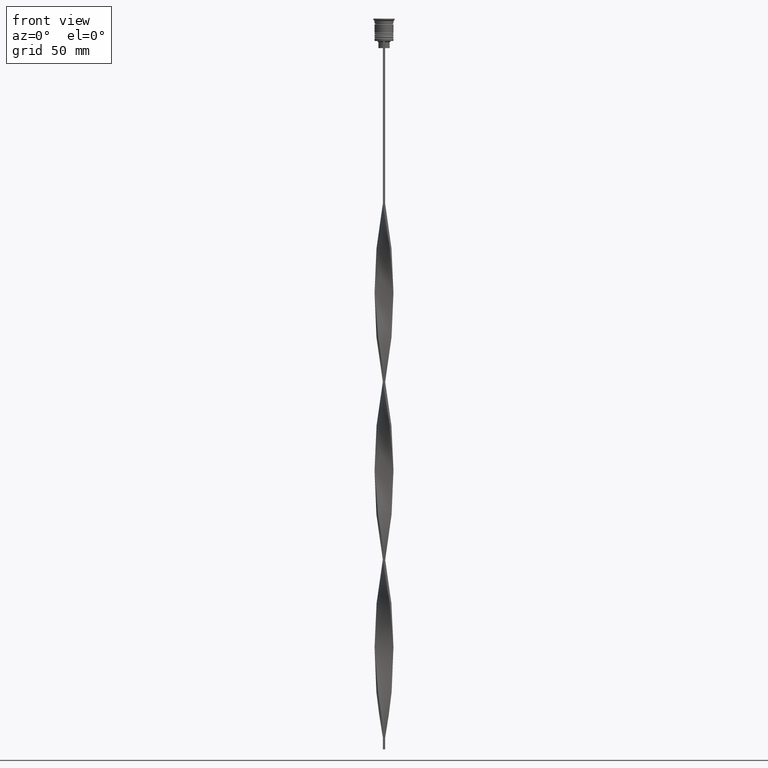
[diagram: clean part render]
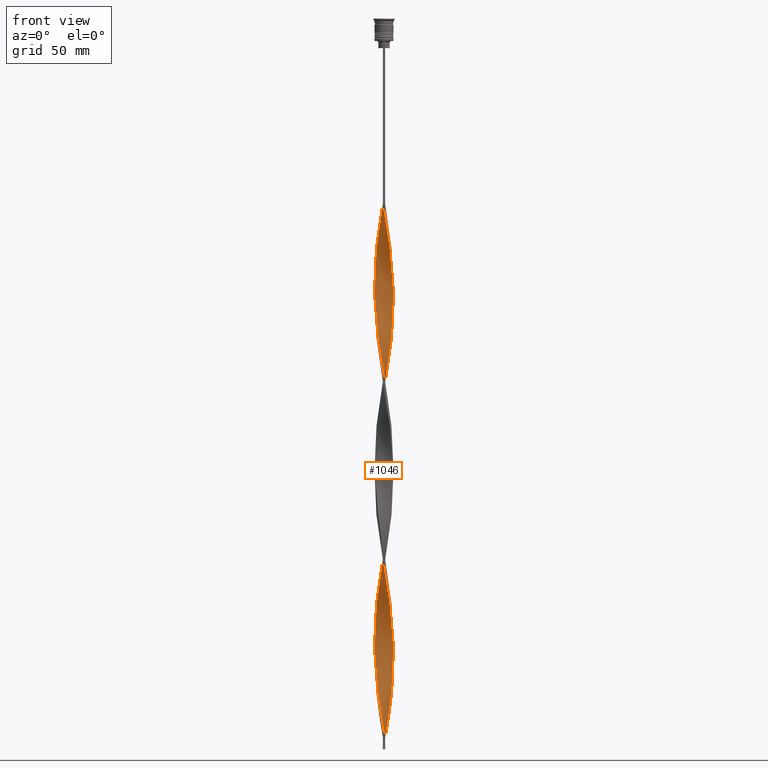
[diagram: same view with one face highlighted and labeled with its STEP entity id]
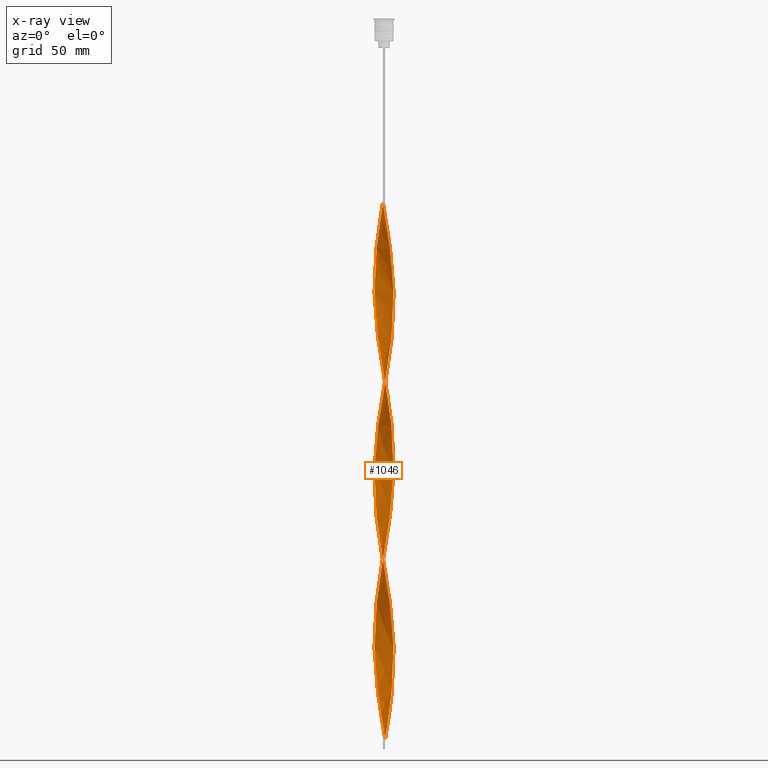
[diagram: x-ray of the same camera — body ghosted, the highlighted face saturated]
A machine part, front view. The second image highlights one B-rep face of the part: STEP entity #1046.
The next image is the same camera in x-ray: the body ghosted, the highlighted face saturated — about 0% of this face is hidden behind the body in this view.
In plain terms, the highlighted face is a freeform B-spline surface patch.
Its self-contained STEP definition (entity closure, byte-faithful):
#10 = CARTESIAN_POINT ( 'NONE',  ( 1.775272850193348129, 3.634553836156354745, -215.2894736842105488 ) ) ;
#17 = CARTESIAN_POINT ( 'NONE',  ( -1.152832542896752965, -3.877183566532631076, -143.9210526315789593 ) ) ;
#30 = CARTESIAN_POINT ( 'NONE',  ( 3.876387747932445560, 1.155505650454253574, -195.4649122807017534 ) ) ;
#36 = CARTESIAN_POINT ( 'NONE',  ( 2.615308476010500538, -3.085731170380874300, -167.7105263157894797 ) ) ;
#37 = CARTESIAN_POINT ( 'NONE',  ( 4.041546438877108294, 0.1657638771030611746, -270.7982456140351246 ) ) ;
#43 = CARTESIAN_POINT ( 'NONE',  ( -3.462245594293744677, 2.064668361939407948, -181.5877192982456449 ) ) ;
#58 = CARTESIAN_POINT ( 'NONE',  ( -4.000343807327721102, 0.4972418155935317552, -260.8859649122807127 ) ) ;
#60 = CARTESIAN_POINT ( 'NONE',  ( 3.622139992111327977, 1.769209393358442517, -280.7105263157894797 ) ) ;
#63 = CARTESIAN_POINT ( 'NONE',  ( 3.863941018946714934, 1.148895035284348332, -126.0789473684210691 ) ) ;
#77 = CARTESIAN_POINT ( 'NONE',  ( 0.8314494498030657876, -3.958568818774615750, -155.8157894736842195 ) ) ;
#78 = CARTESIAN_POINT ( 'NONE',  ( 2.071744419492574707, -3.474111446233965950, -163.7456140350876979 ) ) ;
#81 = CARTESIAN_POINT ( 'NONE',  ( 1.775272850193347685, -3.634553836156354745, -92.37719298245613686 ) ) ;
#94 = CARTESIAN_POINT ( 'NONE',  ( -3.622139992111327533, 1.769209393358443627, -252.9561403508772059 ) ) ;
#95 = CARTESIAN_POINT ( 'NONE',  ( -3.633328892441398672, -1.777778512611467576, -124.0964912280701640 ) ) ;
#98 = CARTESIAN_POINT ( 'NONE',  ( -1.152832542896750301, 3.877183566532631964, -163.7456140350876979 ) ) ;
#114 = B_SPLINE_CURVE_WITH_KNOTS ( 'NONE', 3,
 ( #1154, #785, #3676, #3342 ),
 .UNSPECIFIED., .F., .F.,
 ( 4, 4 ),
 ( 0.000000000000000000, 1.000000000000000000 ),
 .UNSPECIFIED. ) ;
#116 = CARTESIAN_POINT ( 'NONE',  ( 0.5000000000000005551, 4.000000000000000000, -304.5000000000000000 ) ) ;
#119 = CARTESIAN_POINT ( 'NONE',  ( -3.291162296146088906, 2.351558211267347431, -179.6052631578947398 ) ) ;
#137 = CARTESIAN_POINT ( 'NONE',  ( -0.4989459690400829261, -4.014053836277128973, -147.8859649122807127 ) ) ;
#140 = CARTESIAN_POINT ( 'NONE',  ( 1.775272850193347685, -3.634553836156354745, -243.0438596491228509 ) ) ;
#155 = CARTESIAN_POINT ( 'NONE',  ( -3.075191833988901280, -2.606375871620971285, -280.7105263157894797 ) ) ;
#156 = CARTESIAN_POINT ( 'NONE',  ( 2.851421105456868332, -2.849455681240740557, -169.6929824561403279 ) ) ;
#158 = CARTESIAN_POINT ( 'NONE',  ( 3.945048299290513150, -0.8286096283926643880, -264.8508771929824661 ) ) ;
#159 = CARTESIAN_POINT ( 'NONE',  ( 0.8258892559684165580, -3.945618701404880024, -237.0964912280701924 ) ) ;
#167 = FACE_OUTER_BOUND ( 'NONE', #1972, .T. ) ;
#177 = CARTESIAN_POINT ( 'NONE',  ( -3.622139992111328866, -1.769209393358442073, -205.3771929824561653 ) ) ;
#180 = CARTESIAN_POINT ( 'NONE',  ( -3.475539122107559997, -2.069348470232188930, -207.3596491228070136 ) ) ;
#182 = CARTESIAN_POINT ( 'NONE',  ( 3.754858320186921894, -1.466642081532862241, -260.8859649122807127 ) ) ;
#203 = CARTESIAN_POINT ( 'NONE',  ( -4.027627644762845627, -0.1679748646140053203, -264.8508771929824661 ) ) ;
#206 = CARTESIAN_POINT ( 'NONE',  ( 3.462245594293745121, -2.064668361939406616, -256.9210526315789593 ) ) ;
#224 = CARTESIAN_POINT ( 'NONE',  ( 3.876387747932444228, -1.155505650454256017, -262.8684210526315042 ) ) ;
#241 = CARTESIAN_POINT ( 'NONE',  ( -2.604254856879656632, -3.076988241839529348, -134.0087719298245759 ) ) ;
#259 = CARTESIAN_POINT ( 'NONE',  ( 1.775272850193347685, -3.634553836156354745, -92.37719298245615107 ) ) ;
#282 = CARTESIAN_POINT ( 'NONE',  ( 2.604254856879658409, 3.076988241839528015, -209.3421052631578902 ) ) ;
#283 = CARTESIAN_POINT ( 'NONE',  ( -1.152832542896750079, 3.877183566532631964, -163.7456140350876979 ) ) ;
#289 = CARTESIAN_POINT ( 'NONE',  ( -3.768740862115096402, 1.469070316484696770, -104.2719298245614112 ) ) ;
#301 = CARTESIAN_POINT ( 'NONE',  ( -3.291162296146090682, -2.351558211267345211, -278.7280701754385177 ) ) ;
#302 = CARTESIAN_POINT ( 'NONE',  ( -4.013708850648581183, 0.5017136063310734251, -191.4999999999999716 ) ) ;
#308 = CARTESIAN_POINT ( 'NONE',  ( -4.000343807327721102, 0.4972418155935317552, -110.2192982456140413 ) ) ;
#318 = CARTESIAN_POINT ( 'NONE',  ( 3.633328892441399116, 1.777778512611467132, -199.4298245614035068 ) ) ;
#329 = CARTESIAN_POINT ( 'NONE',  ( -3.633328892441399116, -1.777778512611467576, -124.0964912280701640 ) ) ;
#340 = CARTESIAN_POINT ( 'NONE',  ( 3.959141175778333022, -0.8287197540840020027, -183.5701754385964364 ) ) ;
#347 = CARTESIAN_POINT ( 'NONE',  ( 3.087533734903234350, -2.613180192100608146, -171.6754385964912331 ) ) ;
#352 = CARTESIAN_POINT ( 'NONE',  ( 0.5000000000000005551, 4.000000000000000000, -153.8333333333333144 ) ) ;
#363 = CARTESIAN_POINT ( 'NONE',  ( -0.1685505501969309927, 4.041431181225382474, -227.1842105263158089 ) ) ;
#367 = CARTESIAN_POINT ( 'NONE',  ( 3.959141175778332133, 0.8287197540840012255, -124.0964912280701640 ) ) ;
#379 = CARTESIAN_POINT ( 'NONE',  ( 2.062280596060475979, 3.463668393930407596, -213.3070175438596721 ) ) ;
#381 = CARTESIAN_POINT ( 'NONE',  ( -3.075191833988901280, -2.606375871620971285, -130.0438596491227941 ) ) ;
#385 = CARTESIAN_POINT ( 'NONE',  ( 1.152832542896751189, -3.877183566532631520, -88.41228070175438347 ) ) ;
#400 = CARTESIAN_POINT ( 'NONE',  ( 1.151559012824296291, -3.863147918470523301, -157.7982456140350962 ) ) ;
#401 = CARTESIAN_POINT ( 'NONE',  ( -4.027627644762845627, -0.1679748646140053203, -114.1842105263157947 ) ) ;
#403 = CARTESIAN_POINT ( 'NONE',  ( 3.291162296146090682, -2.351558211267345211, -104.2719298245614112 ) ) ;
#415 = CARTESIAN_POINT ( 'NONE',  ( 2.343526447751538289, -3.279921308307419903, -165.7280701754386030 ) ) ;
#416 = CARTESIAN_POINT ( 'NONE',  ( -0.5000000000000000000, 4.000000000000000000, -78.50000000000000000 ) ) ;
#418 = CARTESIAN_POINT ( 'NONE',  ( 3.876387747932444228, -1.155505650454256017, -112.2017543859649180 ) ) ;
#433 = CARTESIAN_POINT ( 'NONE',  ( 3.087533734903233906, -2.613180192100608146, -171.6754385964912046 ) ) ;
#438 = CARTESIAN_POINT ( 'NONE',  ( 2.851421105456868776, 2.849455681240740113, -288.6403508771929864 ) ) ;
#448 = CARTESIAN_POINT ( 'NONE',  ( -2.851421105456868776, -2.849455681240739668, -213.3070175438596721 ) ) ;
#456 = CARTESIAN_POINT ( 'NONE',  ( -1.152832542896752965, -3.877183566532631076, -294.5877192982456449 ) ) ;
#457 = CARTESIAN_POINT ( 'NONE',  ( 3.768740862115095513, -1.469070316484698990, -179.6052631578947398 ) ) ;
#460 = CARTESIAN_POINT ( 'NONE',  ( 1.151559012824297401, 3.863147918470522413, -300.5350877192982466 ) ) ;
#476 = CARTESIAN_POINT ( 'NONE',  ( 4.000343807327721102, 0.4972418155935313666, -122.1140350877193015 ) ) ;
#478 = CARTESIAN_POINT ( 'NONE',  ( -1.151559012824299399, -3.863147918470521969, -225.2017543859649038 ) ) ;
#496 = CARTESIAN_POINT ( 'NONE',  ( 0.8314494498030685632, 3.958568818774615750, -151.8508771929824661 ) ) ;
#499 = CARTESIAN_POINT ( 'NONE',  ( 3.291162296146090682, -2.351558211267345211, -254.9385964912280826 ) ) ;
#527 = CARTESIAN_POINT ( 'NONE',  ( 3.959141175778332133, 0.8287197540840012255, -274.7631578947368780 ) ) ;
#532 = VERTEX_POINT ( 'NONE', #696 ) ;
#543 = CARTESIAN_POINT ( 'NONE',  ( -2.859221371831710545, -2.861193531974598692, -132.0263157894736992 ) ) ;
#556 = CARTESIAN_POINT ( 'NONE',  ( 0.5000000000000005551, 4.000000000000000000, -304.5000000000000000 ) ) ;
#576 = CARTESIAN_POINT ( 'NONE',  ( -1.775272850193347685, -3.634553836156354745, -290.6228070175438347 ) ) ;
#578 = CARTESIAN_POINT ( 'NONE',  ( -0.4989459690400802061, 4.014053836277129861, -159.7807017543859729 ) ) ;
#587 = CARTESIAN_POINT ( 'NONE',  ( -0.5000000000000000000, 4.000000000000000000, -78.50000000000000000 ) ) ;
#593 = VERTEX_POINT ( 'NONE', #2695 ) ;
#600 = CARTESIAN_POINT ( 'NONE',  ( -2.851421105456868332, 2.849455681240740557, -245.0263157894736992 ) ) ;
#601 = CARTESIAN_POINT ( 'NONE',  ( 4.041546438877108294, 0.1657638771030611746, -120.1315789473683964 ) ) ;
#618 = CARTESIAN_POINT ( 'NONE',  ( 3.462245594293745121, 2.064668361939406616, -201.4122807017543835 ) ) ;
#619 = CARTESIAN_POINT ( 'NONE',  ( 3.281536428505397396, 2.341264331166397206, -134.0087719298245759 ) ) ;
#626 = CARTESIAN_POINT ( 'NONE',  ( -3.876387747932445116, -1.155505650454255573, -120.1315789473684106 ) ) ;
#634 = CARTESIAN_POINT ( 'NONE',  ( -3.768740862115096402, 1.469070316484696770, -254.9385964912280826 ) ) ;
#646 = CARTESIAN_POINT ( 'NONE',  ( 3.945048299290513150, 0.8286096283926643880, -193.4824561403508767 ) ) ;
#651 = CARTESIAN_POINT ( 'NONE',  ( 2.851421105456868776, 2.849455681240740113, -137.9736842105263008 ) ) ;
#667 = CARTESIAN_POINT ( 'NONE',  ( 0.4989459690400818714, 4.014053836277128973, -223.2192982456140271 ) ) ;
#671 = CARTESIAN_POINT ( 'NONE',  ( -0.5000000000000000000, -4.000000000000000000, -78.50000000000000000 ) ) ;
#683 = CARTESIAN_POINT ( 'NONE',  ( 1.471668575845525240, -3.767727018166429076, -159.7807017543859729 ) ) ;
#684 = CARTESIAN_POINT ( 'NONE',  ( -3.945048299290513150, -0.8286096283926639439, -118.1491228070175481 ) ) ;
#696 = CARTESIAN_POINT ( 'NONE',  ( 0.4999999999999994449, -4.000000000000000000, -304.5000000000000000 ) ) ;
#701 = CARTESIAN_POINT ( 'NONE',  ( -2.851421105456868332, 2.849455681240740557, -245.0263157894736992 ) ) ;
#703 = CARTESIAN_POINT ( 'NONE',  ( -2.071744419492575595, 3.474111446233965506, -88.41228070175438347 ) ) ;
#707 = CARTESIAN_POINT ( 'NONE',  ( 0.1685505501969342401, 4.041431181225382474, -155.8157894736842195 ) ) ;
#708 = CARTESIAN_POINT ( 'NONE',  ( -0.1685505501969329079, -4.041431181225382474, -231.1491228070175623 ) ) ;
#725 = CARTESIAN_POINT ( 'NONE',  ( -3.768740862115096402, 1.469070316484696770, -254.9385964912280826 ) ) ;
#726 = CARTESIAN_POINT ( 'NONE',  ( 1.471668575845525240, -3.767727018166429076, -159.7807017543859729 ) ) ;
#728 = CARTESIAN_POINT ( 'NONE',  ( -2.349288341927599610, 3.292782951704462668, -171.6754385964912331 ) ) ;
#747 = CARTESIAN_POINT ( 'NONE',  ( -3.462245594293745565, -2.064668361939405727, -126.0789473684210691 ) ) ;
#749 = CARTESIAN_POINT ( 'NONE',  ( 2.604254856879656188, -3.076988241839530236, -248.9912280701754241 ) ) ;
#769 = CARTESIAN_POINT ( 'NONE',  ( 3.622139992111327533, -1.769209393358443627, -177.6228070175438347 ) ) ;
#774 = CARTESIAN_POINT ( 'NONE',  ( -3.281536428505399172, -2.341264331166395873, -209.3421052631578902 ) ) ;
#785 = CARTESIAN_POINT ( 'NONE',  ( 0.5000000000000002220, 1.333333333333333481, -304.5000000000000000 ) ) ;
#790 = CARTESIAN_POINT ( 'NONE',  ( -1.464052696545049548, 3.755868701344493132, -165.7280701754386030 ) ) ;
#793 = CARTESIAN_POINT ( 'NONE',  ( -4.000343807327721102, -0.4972418155935300343, -197.4473684210526585 ) ) ;
#808 = CARTESIAN_POINT ( 'NONE',  ( -1.464052696545050436, -3.755868701344492688, -292.6052631578947398 ) ) ;
#809 = CARTESIAN_POINT ( 'NONE',  ( 0.1685505501969342679, 4.041431181225382474, -155.8157894736842195 ) ) ;
#812 = CARTESIAN_POINT ( 'NONE',  ( 0.8258892559684165580, -3.945618701404880024, -237.0964912280701924 ) ) ;
#827 = CARTESIAN_POINT ( 'NONE',  ( -2.859221371831710545, -2.861193531974598692, -282.6929824561403848 ) ) ;
#830 = CARTESIAN_POINT ( 'NONE',  ( 1.464052696545049548, -3.755868701344493132, -241.0614035087719174 ) ) ;
#856 = CARTESIAN_POINT ( 'NONE',  ( 2.349288341927600499, -3.292782951704461780, -247.0087719298245190 ) ) ;
#887 = CARTESIAN_POINT ( 'NONE',  ( -2.604254856879656632, -3.076988241839529348, -284.6754385964912331 ) ) ;
#888 = CARTESIAN_POINT ( 'NONE',  ( 4.013708850648581183, -0.5017136063310728700, -116.1666666666666714 ) ) ;
#913 = CARTESIAN_POINT ( 'NONE',  ( -2.604254856879654412, 3.076988241839531568, -173.6578947368421098 ) ) ;
#935 = CARTESIAN_POINT ( 'NONE',  ( 3.075191833988901724, 2.606375871620970841, -205.3771929824561653 ) ) ;
#936 = CARTESIAN_POINT ( 'NONE',  ( -3.959141175778333022, -0.8287197540840007814, -199.4298245614035068 ) ) ;
#954 = CARTESIAN_POINT ( 'NONE',  ( 2.859221371831710989, 2.861193531974598248, -207.3596491228070136 ) ) ;
#960 = CARTESIAN_POINT ( 'NONE',  ( 2.071744419492575151, -3.474111446233965950, -163.7456140350876979 ) ) ;
#972 = CARTESIAN_POINT ( 'NONE',  ( -3.959141175778332133, 0.8287197540840015586, -258.9035087719299213 ) ) ;
#974 = CARTESIAN_POINT ( 'NONE',  ( -3.281536428505399172, -2.341264331166395873, -209.3421052631578902 ) ) ;
#984 = CARTESIAN_POINT ( 'NONE',  ( 3.291162296146092014, 2.351558211267342990, -203.3947368421052602 ) ) ;
#985 = CARTESIAN_POINT ( 'NONE',  ( 3.768740862115096402, 1.469070316484696548, -278.7280701754385177 ) ) ;
#990 = CARTESIAN_POINT ( 'NONE',  ( -3.945048299290513150, 0.8286096283926659423, -189.5175438596491517 ) ) ;
#1004 = CARTESIAN_POINT ( 'NONE',  ( 3.633328892441399116, 1.777778512611467132, -199.4298245614035068 ) ) ;
#1005 = CARTESIAN_POINT ( 'NONE',  ( 1.771706497669051972, 3.620919232200196625, -296.5701754385964932 ) ) ;
#1008 = CARTESIAN_POINT ( 'NONE',  ( -0.1651977094215738573, 4.027742508751257056, -157.7982456140350962 ) ) ;
#1021 = CARTESIAN_POINT ( 'NONE',  ( 3.075191833988901724, 2.606375871620970841, -205.3771929824561653 ) ) ;
#1022 = CARTESIAN_POINT ( 'NONE',  ( -2.604254856879656632, -3.076988241839529348, -134.0087719298245759 ) ) ;
#1026 = CARTESIAN_POINT ( 'NONE',  ( 3.754858320186921894, -1.466642081532862241, -110.2192982456140413 ) ) ;
#1039 = CARTESIAN_POINT ( 'NONE',  ( 3.876387747932445560, 1.155505650454253352, -195.4649122807017534 ) ) ;
#1044 = CARTESIAN_POINT ( 'NONE',  ( 1.464052696545049548, -3.755868701344493132, -90.39473684210526017 ) ) ;
#1046 = ADVANCED_FACE ( 'NONE', ( #167 ), #2900, .T. ) ;
#1066 = CARTESIAN_POINT ( 'NONE',  ( -1.775272850193347685, -3.634553836156354745, -139.9561403508772059 ) ) ;
#1068 = CARTESIAN_POINT ( 'NONE',  ( 4.027627644762845627, -0.1679748646140058199, -118.1491228070175481 ) ) ;
#1082 = CARTESIAN_POINT ( 'NONE',  ( -3.633328892441399116, -1.777778512611467576, -274.7631578947368780 ) ) ;
#1083 = CARTESIAN_POINT ( 'NONE',  ( 2.071744419492577371, 3.474111446233965061, -294.5877192982455881 ) ) ;
#1085 = CARTESIAN_POINT ( 'NONE',  ( -0.1685505501969328801, -4.041431181225382474, -231.1491228070175623 ) ) ;
#1100 = CARTESIAN_POINT ( 'NONE',  ( 0.5000000000000005551, 4.000000000000000000, -153.8333333333333144 ) ) ;
#1104 = CARTESIAN_POINT ( 'NONE',  ( 1.471668575845527682, 3.767727018166428188, -298.5526315789473983 ) ) ;
#1123 = CARTESIAN_POINT ( 'NONE',  ( -2.062280596060474647, 3.463668393930408929, -169.6929824561403279 ) ) ;
#1127 = CARTESIAN_POINT ( 'NONE',  ( -1.771706497669052194, -3.620919232200196181, -221.2368421052631788 ) ) ;
#1140 = CARTESIAN_POINT ( 'NONE',  ( -4.013708850648581183, -0.5017136063310724259, -266.8333333333333712 ) ) ;
#1142 = CARTESIAN_POINT ( 'NONE',  ( -3.622139992111328866, -1.769209393358442073, -205.3771929824561653 ) ) ;
#1143 = EDGE_CURVE ( 'NONE', #1839, #532, #114, .T. ) ;
#1154 = CARTESIAN_POINT ( 'NONE',  ( 0.5000000000000005551, 4.000000000000000000, -304.5000000000000000 ) ) ;
#1185 = CARTESIAN_POINT ( 'NONE',  ( -3.075191833988901280, -2.606375871620971285, -130.0438596491227941 ) ) ;
#1197 = CARTESIAN_POINT ( 'NONE',  ( -0.5000000000000000000, 4.000000000000000000, -229.1666666666666856 ) ) ;
#1199 = CARTESIAN_POINT ( 'NONE',  ( 2.071744419492577371, 3.474111446233965061, -143.9210526315789309 ) ) ;
#1218 = CARTESIAN_POINT ( 'NONE',  ( -3.462245594293745565, -2.064668361939405727, -276.7456140350877263 ) ) ;
#1219 = CARTESIAN_POINT ( 'NONE',  ( 2.062280596060474647, -3.463668393930408484, -94.35964912280701355 ) ) ;
#1221 =( BOUNDED_CURVE ( )  B_SPLINE_CURVE ( 2, ( #671, #3898, #1622, #3481, #3208, #385, #1044, #81, #1986, #1646, #2895, #3190, #1335, #403, #2581, #3858, #1026, #418, #3843, #2240, #1068, #2273, #3504, #367, #63, #1604, #2596, #3543, #2876, #1662, #651, #3173, #2256, #1933, #1317, #2567, #2913, #1914, #352, #707, #1008, #2856, #1968, #98, #1350, #2294, #3245, #728, #3565, #1680, #2932, #119, #43, #1294, #2547, #3821, #990, #2959, #2721, #2329, #793, #2065, #2686, #2369, #1142, #180, #774, #3310, #2978, #3019, #3662, #2387, #1127, #1429, #478, #1743, #1767, #1085, #3331, #3600, #812, #3957, #830, #140, #3643, #2083, #749, #1726, #3290, #499, #206, #1453, #2996, #224, #158, #2706, #3973, #3352, #1472, #527, #2004, #1788, #3038, #3265, #2047, #3989, #438, #2312, #3582, #1707, #1390, #1104, #460, #2640, #3913 ),
 .UNSPECIFIED., .F., .T. ) 
 B_SPLINE_CURVE_WITH_KNOTS ( ( 3, 2, 2, 2, 2, 2, 2, 2, 2, 2, 2, 2, 2, 2, 2, 2, 2, 2, 2, 2, 2, 2, 2, 2, 2, 2, 2, 2, 2, 2, 2, 2, 2, 2, 2, 2, 2, 2, 2, 2, 2, 2, 2, 2, 2, 2, 2, 2, 2, 2, 2, 2, 2, 2, 2, 2, 2, 3 ),
 ( 0.000000000000000000, 0.01315789473684210453, 0.02631578947368420907, 0.03947368421052631360, 0.05263157894736841813, 0.06578947368421052266, 0.07894736842105262720, 0.09210526315789473173, 0.1052631578947368363, 0.1184210526315789408, 0.1315789473684210453, 0.1447368421052631637, 0.1578947368421052544, 0.1710526315789473728, 0.1842105263157894635, 0.1973684210526315541, 0.2105263157894736725, 0.2236842105263157909, 0.2368421052631578816, 0.2500000000000000000, 0.2631578947368420907, 0.2763157894736842368, 0.2894736842105263275, 0.3026315789473684181, 0.3157894736842105088, 0.3289473684210526550, 0.3421052631578947456, 0.3552631578947368918, 0.3684210526315789269, 0.3815789473684210731, 0.3947368421052631082, 0.4078947368421052544, 0.4210526315789473450, 0.4342105263157895467, 0.4473684210526315819, 0.4605263157894736725, 0.4736842105263157632, 0.4868421052631579093, 0.5000000000000000000, 0.5131578947368421462, 0.5263157894736841813, 0.5394736842105263275, 0.5526315789473684736, 0.5657894736842105088, 0.5789473684210526550, 0.5921052631578946901, 0.6052631578947368363, 0.6184210526315789824, 0.6315789473684210176, 0.6447368421052631637, 0.6578947368421053099, 0.6710526315789473450, 0.6842105263157894912, 0.6973684210526315264, 0.7105263157894737835, 0.7236842105263158187, 0.7368421052631578538, 0.7500000000000000000 ),
 .UNSPECIFIED. ) 
 CURVE ( )  GEOMETRIC_REPRESENTATION_ITEM ( )  RATIONAL_B_SPLINE_CURVE ( ( 1.000000000000000000, 0.9965844930066698470, 1.000000000000000000, 0.9965844930066698470, 1.000000000000000000, 0.9965844930066698470, 1.000000000000000000, 0.9965844930066698470, 1.000000000000000000, 0.9965844930066698470, 1.000000000000000000, 0.9965844930066698470, 1.000000000000000000, 0.9965844930066698470, 1.000000000000000000, 0.9965844930066698470, 1.000000000000000000, 0.9965844930066698470, 1.000000000000000000, 0.9965844930066698470, 1.000000000000000000, 0.9965844930066698470, 1.000000000000000000, 0.9965844930066698470, 1.000000000000000000, 0.9965844930066698470, 1.000000000000000000, 0.9965844930066698470, 1.000000000000000000, 0.9965844930066698470, 1.000000000000000000, 0.9965844930066698470, 1.000000000000000000, 0.9965844930066698470, 1.000000000000000000, 0.9965844930066698470, 1.000000000000000000, 0.9965844930066698470, 1.000000000000000000, 0.9965844930066698470, 1.000000000000000000, 0.9965844930066698470, 1.000000000000000000, 0.9965844930066698470, 1.000000000000000000, 0.9965844930066698470, 1.000000000000000000, 0.9965844930066698470, 1.000000000000000000, 0.9965844930066698470, 1.000000000000000000, 0.9965844930066698470, 1.000000000000000000, 0.9965844930066698470, 1.000000000000000000, 0.9965844930066698470, 1.000000000000000000, 0.9965844930066698470, 1.000000000000000000, 0.9965844930066698470, 1.000000000000000000, 0.9965844930066698470, 1.000000000000000000, 0.9965844930066698470, 1.000000000000000000, 0.9965844930066698470, 1.000000000000000000, 0.9965844930066698470, 1.000000000000000000, 0.9965844930066698470, 1.000000000000000000, 0.9965844930066698470, 1.000000000000000000, 0.9965844930066698470, 1.000000000000000000, 0.9965844930066698470, 1.000000000000000000, 0.9965844930066698470, 1.000000000000000000, 0.9965844930066698470, 1.000000000000000000, 0.9965844930066698470, 1.000000000000000000, 0.9965844930066698470, 1.000000000000000000, 0.9965844930066698470, 1.000000000000000000, 0.9965844930066698470, 1.000000000000000000, 0.9965844930066698470, 1.000000000000000000, 0.9965844930066698470, 1.000000000000000000, 0.9965844930066698470, 1.000000000000000000, 0.9965844930066698470, 1.000000000000000000, 0.9965844930066698470, 1.000000000000000000, 0.9965844930066698470, 1.000000000000000000, 0.9965844930066698470, 1.000000000000000000, 0.9965844930066698470, 1.000000000000000000, 0.9965844930066698470, 1.000000000000000000, 0.9965844930066698470, 1.000000000000000000, 0.9965844930066698470, 1.000000000000000000, 0.9965844930066698470, 1.000000000000000000, 0.9965844930066698470, 1.000000000000000000 ) ) 
 REPRESENTATION_ITEM ( '' )  );
#1240 = CARTESIAN_POINT ( 'NONE',  ( -0.1651977094215750508, -4.027742508751256167, -300.5350877192982466 ) ) ;
#1242 = CARTESIAN_POINT ( 'NONE',  ( -2.859221371831710545, 2.861193531974599580, -175.6403508771930149 ) ) ;
#1251 = CARTESIAN_POINT ( 'NONE',  ( -3.475539122107559553, 2.069348470232189374, -100.3070175438596294 ) ) ;
#1264 = CARTESIAN_POINT ( 'NONE',  ( -3.087533734903234350, 2.613180192100606813, -247.0087719298245190 ) ) ;
#1270 = CARTESIAN_POINT ( 'NONE',  ( -2.071744419492576039, 3.474111446233965506, -239.0789473684210407 ) ) ;
#1282 = CARTESIAN_POINT ( 'NONE',  ( 0.8258892559684176682, 3.945618701404880024, -221.2368421052631788 ) ) ;
#1289 = CARTESIAN_POINT ( 'NONE',  ( 3.768740862115095513, -1.469070316484699212, -179.6052631578947398 ) ) ;
#1290 = CARTESIAN_POINT ( 'NONE',  ( 4.000343807327721102, 0.4972418155935313666, -272.7807017543859729 ) ) ;
#1294 = CARTESIAN_POINT ( 'NONE',  ( -3.633328892441399116, 1.777778512611468464, -183.5701754385964648 ) ) ;
#1312 = CARTESIAN_POINT ( 'NONE',  ( 3.475539122107559109, -2.069348470232190262, -175.6403508771929864 ) ) ;
#1313 = CARTESIAN_POINT ( 'NONE',  ( 3.475539122107559997, 2.069348470232189818, -282.6929824561403848 ) ) ;
#1317 = CARTESIAN_POINT ( 'NONE',  ( 1.771706497669051972, 3.620919232200196625, -145.9035087719298076 ) ) ;
#1331 = CARTESIAN_POINT ( 'NONE',  ( 4.000343807327721102, -0.4972418155935313666, -185.5526315789473699 ) ) ;
#1332 = CARTESIAN_POINT ( 'NONE',  ( -0.8258892559684172241, -3.945618701404880024, -145.9035087719298076 ) ) ;
#1335 = CARTESIAN_POINT ( 'NONE',  ( 3.075191833988900836, -2.606375871620972173, -102.2894736842105203 ) ) ;
#1345 = CARTESIAN_POINT ( 'NONE',  ( 0.1685505501969314646, -4.041431181225382474, -151.8508771929824661 ) ) ;
#1346 = CARTESIAN_POINT ( 'NONE',  ( -3.087533734903234350, 2.613180192100606813, -96.34210526315787604 ) ) ;
#1350 = CARTESIAN_POINT ( 'NONE',  ( -1.464052696545049548, 3.755868701344493132, -165.7280701754386030 ) ) ;
#1365 = CARTESIAN_POINT ( 'NONE',  ( -4.041546438877108294, 0.1657638771030618130, -262.8684210526315042 ) ) ;
#1367 = CARTESIAN_POINT ( 'NONE',  ( 0.8314494498030685632, 3.958568818774615750, -302.5175438596491517 ) ) ;
#1388 = CARTESIAN_POINT ( 'NONE',  ( 3.281536428505396064, -2.341264331166400314, -173.6578947368421098 ) ) ;
#1390 = CARTESIAN_POINT ( 'NONE',  ( 1.771706497669051972, 3.620919232200196625, -296.5701754385964932 ) ) ;
#1406 = CARTESIAN_POINT ( 'NONE',  ( 1.471668575845527682, 3.767727018166428188, -147.8859649122807127 ) ) ;
#1424 = CARTESIAN_POINT ( 'NONE',  ( -3.291162296146090682, -2.351558211267345211, -278.7280701754385746 ) ) ;
#1425 = CARTESIAN_POINT ( 'NONE',  ( 3.462245594293745121, -2.064668361939406616, -106.2543859649122879 ) ) ;
#1429 = CARTESIAN_POINT ( 'NONE',  ( -1.471668575845526794, -3.767727018166428188, -223.2192982456140271 ) ) ;
#1430 = CARTESIAN_POINT ( 'NONE',  ( 3.876387747932444228, -1.155505650454256239, -262.8684210526315042 ) ) ;
#1436 = ORIENTED_EDGE ( 'NONE', *, *, #2630, .F. ) ;
#1453 = CARTESIAN_POINT ( 'NONE',  ( 3.633328892441399116, -1.777778512611468020, -258.9035087719298645 ) ) ;
#1459 = CARTESIAN_POINT ( 'NONE',  ( -2.615308476010501870, -3.085731170380873412, -215.2894736842105488 ) ) ;
#1466 = CARTESIAN_POINT ( 'NONE',  ( 0.1685505501969314646, -4.041431181225382474, -302.5175438596491517 ) ) ;
#1472 = CARTESIAN_POINT ( 'NONE',  ( 4.000343807327721102, 0.4972418155935313666, -272.7807017543859729 ) ) ;
#1507 = CARTESIAN_POINT ( 'NONE',  ( -3.876387747932445116, -1.155505650454255795, -270.7982456140351246 ) ) ;
#1509 = CARTESIAN_POINT ( 'NONE',  ( 2.349288341927600499, -3.292782951704461780, -96.34210526315787604 ) ) ;
#1516 = CARTESIAN_POINT ( 'NONE',  ( -2.851421105456868332, 2.849455681240740557, -94.35964912280701355 ) ) ;
#1529 = CARTESIAN_POINT ( 'NONE',  ( -4.000343807327721102, 0.4972418155935317552, -260.8859649122807127 ) ) ;
#1530 = CARTESIAN_POINT ( 'NONE',  ( -3.075191833988900836, 2.606375871620972173, -177.6228070175438347 ) ) ;
#1548 = CARTESIAN_POINT ( 'NONE',  ( -2.859221371831710989, -2.861193531974598692, -282.6929824561403848 ) ) ;
#1550 = CARTESIAN_POINT ( 'NONE',  ( 3.863941018946714934, 1.148895035284348332, -126.0789473684210691 ) ) ;
#1556 = CARTESIAN_POINT ( 'NONE',  ( -4.027627644762845627, -0.1679748646140053203, -114.1842105263157947 ) ) ;
#1569 = CARTESIAN_POINT ( 'NONE',  ( -1.471668575845526350, 3.767727018166428632, -235.1140350877193157 ) ) ;
#1592 = CARTESIAN_POINT ( 'NONE',  ( 3.754858320186922338, 1.466642081532860464, -197.4473684210526585 ) ) ;
#1598 = CARTESIAN_POINT ( 'NONE',  ( -0.1651977094215750508, -4.027742508751256167, -149.8684210526315894 ) ) ;
#1604 = CARTESIAN_POINT ( 'NONE',  ( 3.768740862115096402, 1.469070316484696548, -128.0614035087719458 ) ) ;
#1617 = CARTESIAN_POINT ( 'NONE',  ( -2.343526447751538733, 3.279921308307419903, -241.0614035087719174 ) ) ;
#1622 = CARTESIAN_POINT ( 'NONE',  ( 0.1651977094215744957, -4.027742508751256167, -82.46491228070175339 ) ) ;
#1641 = CARTESIAN_POINT ( 'NONE',  ( -0.8314494498030671199, 3.958568818774615750, -231.1491228070175623 ) ) ;
#1642 = CARTESIAN_POINT ( 'NONE',  ( -1.464052696545050436, -3.755868701344492688, -141.9385964912280826 ) ) ;
#1646 = CARTESIAN_POINT ( 'NONE',  ( 2.349288341927600499, -3.292782951704461336, -96.34210526315787604 ) ) ;
#1658 = CARTESIAN_POINT ( 'NONE',  ( -3.281536428505396952, 2.341264331166398982, -248.9912280701754241 ) ) ;
#1659 = CARTESIAN_POINT ( 'NONE',  ( -1.471668575845526350, 3.767727018166428632, -84.44736842105264429 ) ) ;
#1662 = CARTESIAN_POINT ( 'NONE',  ( 3.087533734903234350, 2.613180192100606813, -135.9912280701754241 ) ) ;
#1677 = CARTESIAN_POINT ( 'NONE',  ( 4.041546438877108294, -0.1657638771030640612, -187.5350877192982466 ) ) ;
#1678 = CARTESIAN_POINT ( 'NONE',  ( -3.754858320186921894, -1.466642081532861797, -122.1140350877193015 ) ) ;
#1680 = CARTESIAN_POINT ( 'NONE',  ( -2.859221371831710101, 2.861193531974599580, -175.6403508771929864 ) ) ;
#1681 = CARTESIAN_POINT ( 'NONE',  ( -0.5000000000000000000, -4.000000000000000000, -229.1666666666666856 ) ) ;
#1707 = CARTESIAN_POINT ( 'NONE',  ( 2.071744419492577816, 3.474111446233965061, -294.5877192982456449 ) ) ;
#1719 = CARTESIAN_POINT ( 'NONE',  ( -2.071744419492577816, -3.474111446233964617, -219.2543859649122737 ) ) ;
#1723 = CARTESIAN_POINT ( 'NONE',  ( -3.754858320186921894, -1.466642081532861797, -272.7807017543859729 ) ) ;
#1724 = CARTESIAN_POINT ( 'NONE',  ( 3.863941018946714046, -1.148895035284350996, -181.5877192982456449 ) ) ;
#1726 = CARTESIAN_POINT ( 'NONE',  ( 2.859221371831710545, -2.861193531974598692, -250.9736842105263008 ) ) ;
#1741 = CARTESIAN_POINT ( 'NONE',  ( 0.8258892559684165580, -3.945618701404880024, -86.42982456140350678 ) ) ;
#1743 = CARTESIAN_POINT ( 'NONE',  ( -0.8314494498030690073, -3.958568818774615750, -227.1842105263158089 ) ) ;
#1744 = CARTESIAN_POINT ( 'NONE',  ( 1.464052696545049548, -3.755868701344493132, -241.0614035087719174 ) ) ;
#1763 = CARTESIAN_POINT ( 'NONE',  ( -3.462245594293744677, 2.064668361939407948, -181.5877192982456449 ) ) ;
#1767 = CARTESIAN_POINT ( 'NONE',  ( -0.5000000000000000000, -4.000000000000000000, -229.1666666666666856 ) ) ;
#1788 = CARTESIAN_POINT ( 'NONE',  ( 3.768740862115096402, 1.469070316484696548, -278.7280701754385746 ) ) ;
#1817 = CARTESIAN_POINT ( 'NONE',  ( -1.771706497669052194, -3.620919232200196181, -221.2368421052631788 ) ) ;
#1839 = VERTEX_POINT ( 'NONE', #556 ) ;
#1840 = CARTESIAN_POINT ( 'NONE',  ( -3.754858320186921894, -1.466642081532861797, -272.7807017543859729 ) ) ;
#1841 = CARTESIAN_POINT ( 'NONE',  ( 0.1651977094215744957, -4.027742508751256167, -82.46491228070175339 ) ) ;
#1848 = CARTESIAN_POINT ( 'NONE',  ( -3.863941018946714490, 1.148895035284349442, -106.2543859649122879 ) ) ;
#1849 = CARTESIAN_POINT ( 'NONE',  ( 3.087533734903234350, 2.613180192100606813, -286.6578947368421382 ) ) ;
#1861 = CARTESIAN_POINT ( 'NONE',  ( -1.152832542896752965, -3.877183566532631076, -294.5877192982455881 ) ) ;
#1862 = CARTESIAN_POINT ( 'NONE',  ( -3.876387747932443784, 1.155505650454258459, -187.5350877192982750 ) ) ;
#1867 = CARTESIAN_POINT ( 'NONE',  ( -0.8314494498030671199, 3.958568818774615750, -80.48245614035087669 ) ) ;
#1876 = CARTESIAN_POINT ( 'NONE',  ( 1.152832542896753409, 3.877183566532631520, -219.2543859649122737 ) ) ;
#1877 = CARTESIAN_POINT ( 'NONE',  ( -0.1651977094215738573, 4.027742508751257056, -157.7982456140350962 ) ) ;
#1886 = CARTESIAN_POINT ( 'NONE',  ( -3.754858320186921894, -1.466642081532861797, -122.1140350877193015 ) ) ;
#1898 = CARTESIAN_POINT ( 'NONE',  ( -4.027627644762845627, -0.1679748646140053203, -264.8508771929824661 ) ) ;
#1910 = CARTESIAN_POINT ( 'NONE',  ( 1.464052696545052212, 3.755868701344492244, -217.2719298245613970 ) ) ;
#1914 = CARTESIAN_POINT ( 'NONE',  ( 0.8314494498030685632, 3.958568818774615750, -151.8508771929824661 ) ) ;
#1920 = CARTESIAN_POINT ( 'NONE',  ( -3.622139992111327533, 1.769209393358443627, -252.9561403508772059 ) ) ;
#1921 = CARTESIAN_POINT ( 'NONE',  ( -3.087533734903235683, -2.613180192100605037, -211.3245614035087385 ) ) ;
#1927 = CARTESIAN_POINT ( 'NONE',  ( 0.1651977094215772157, 4.027742508751256167, -225.2017543859649038 ) ) ;
#1933 = CARTESIAN_POINT ( 'NONE',  ( 2.071744419492577816, 3.474111446233965061, -143.9210526315789593 ) ) ;
#1943 = CARTESIAN_POINT ( 'NONE',  ( 1.771706497669051084, -3.620919232200197069, -161.7631578947368212 ) ) ;
#1944 = CARTESIAN_POINT ( 'NONE',  ( -3.281536428505396952, 2.341264331166398982, -98.32456140350876694 ) ) ;
#1947 = CARTESIAN_POINT ( 'NONE',  ( -0.5000000000000000000, -4.000000000000000000, -78.50000000000000000 ) ) ;
#1963 = CARTESIAN_POINT ( 'NONE',  ( -1.151559012824296735, 3.863147918470522413, -233.1315789473684106 ) ) ;
#1964 = CARTESIAN_POINT ( 'NONE',  ( 1.471668575845527682, 3.767727018166428188, -298.5526315789473983 ) ) ;
#1968 = CARTESIAN_POINT ( 'NONE',  ( -0.8258892559684163359, 3.945618701404880913, -161.7631578947368212 ) ) ;
#1972 = EDGE_LOOP ( 'NONE', ( #2070, #3690, #4044, #1436 ) ) ;
#1982 = CARTESIAN_POINT ( 'NONE',  ( -0.4989459690400829817, -4.014053836277128973, -147.8859649122807127 ) ) ;
#1983 = CARTESIAN_POINT ( 'NONE',  ( 1.771706497669051084, -3.620919232200197069, -161.7631578947368212 ) ) ;
#1986 = CARTESIAN_POINT ( 'NONE',  ( 2.062280596060474647, -3.463668393930408484, -94.35964912280701355 ) ) ;
#2000 = CARTESIAN_POINT ( 'NONE',  ( -0.1651977094215750508, -4.027742508751256167, -300.5350877192982466 ) ) ;
#2001 = CARTESIAN_POINT ( 'NONE',  ( 2.343526447751538289, -3.279921308307419903, -165.7280701754386030 ) ) ;
#2004 = CARTESIAN_POINT ( 'NONE',  ( 3.863941018946714934, 1.148895035284348332, -276.7456140350877263 ) ) ;
#2023 = CARTESIAN_POINT ( 'NONE',  ( 0.1685505501969314646, -4.041431181225382474, -151.8508771929824661 ) ) ;
#2044 = CARTESIAN_POINT ( 'NONE',  ( -4.000343807327721102, -0.4972418155935300343, -197.4473684210526585 ) ) ;
#2047 = CARTESIAN_POINT ( 'NONE',  ( 3.281536428505397396, 2.341264331166397206, -284.6754385964912331 ) ) ;
#2048 = CARTESIAN_POINT ( 'NONE',  ( 3.633328892441398672, -1.777778512611468020, -258.9035087719299213 ) ) ;
#2062 = CARTESIAN_POINT ( 'NONE',  ( -3.945048299290513150, -0.8286096283926639439, -268.8157894736842195 ) ) ;
#2063 = CARTESIAN_POINT ( 'NONE',  ( -1.775272850193346796, 3.634553836156355633, -167.7105263157894797 ) ) ;
#2065 = CARTESIAN_POINT ( 'NONE',  ( -3.959141175778333022, -0.8287197540840007814, -199.4298245614035068 ) ) ;
#2070 = ORIENTED_EDGE ( 'NONE', *, *, #2622, .T. ) ;
#2083 = CARTESIAN_POINT ( 'NONE',  ( 2.349288341927600499, -3.292782951704461336, -247.0087719298245474 ) ) ;
#2084 = CARTESIAN_POINT ( 'NONE',  ( 3.291162296146090682, -2.351558211267345211, -254.9385964912280826 ) ) ;
#2105 = CARTESIAN_POINT ( 'NONE',  ( 2.604254856879656188, -3.076988241839530236, -248.9912280701754241 ) ) ;
#2124 = CARTESIAN_POINT ( 'NONE',  ( 2.859221371831710989, -2.861193531974598692, -250.9736842105263008 ) ) ;
#2136 = CARTESIAN_POINT ( 'NONE',  ( 0.4989459690400818159, 4.014053836277128973, -223.2192982456140271 ) ) ;
#2137 = CARTESIAN_POINT ( 'NONE',  ( -0.1685505501969329079, -4.041431181225382474, -80.48245614035087669 ) ) ;
#2146 = CARTESIAN_POINT ( 'NONE',  ( -2.615308476010500982, 3.085731170380873412, -92.37719298245613686 ) ) ;
#2163 = CARTESIAN_POINT ( 'NONE',  ( 4.013708850648581183, 0.5017136063310719818, -191.4999999999999716 ) ) ;
#2164 = CARTESIAN_POINT ( 'NONE',  ( 1.152832542896750967, -3.877183566532631520, -88.41228070175438347 ) ) ;
#2183 = CARTESIAN_POINT ( 'NONE',  ( -2.343526447751538733, 3.279921308307419903, -241.0614035087719174 ) ) ;
#2184 = CARTESIAN_POINT ( 'NONE',  ( 3.087533734903234350, 2.613180192100606813, -135.9912280701753957 ) ) ;
#2201 = CARTESIAN_POINT ( 'NONE',  ( 3.945048299290513150, 0.8286096283926643880, -193.4824561403508767 ) ) ;
#2208 = CARTESIAN_POINT ( 'NONE',  ( 3.281536428505396064, -2.341264331166400314, -173.6578947368421098 ) ) ;
#2209 = CARTESIAN_POINT ( 'NONE',  ( 4.027627644762845627, -0.1679748646140058199, -268.8157894736842195 ) ) ;
#2223 = CARTESIAN_POINT ( 'NONE',  ( -4.013708850648581183, -0.5017136063310724259, -266.8333333333333712 ) ) ;
#2235 = CARTESIAN_POINT ( 'NONE',  ( 2.859221371831710989, 2.861193531974598248, -207.3596491228070136 ) ) ;
#2240 = CARTESIAN_POINT ( 'NONE',  ( 4.013708850648581183, -0.5017136063310728700, -116.1666666666666714 ) ) ;
#2250 = CARTESIAN_POINT ( 'NONE',  ( -2.343526447751540953, -3.279921308307418126, -217.2719298245613970 ) ) ;
#2253 = CARTESIAN_POINT ( 'NONE',  ( 0.4999999999999994449, -4.000000000000000000, -153.8333333333333144 ) ) ;
#2256 = CARTESIAN_POINT ( 'NONE',  ( 2.343526447751539177, 3.279921308307419459, -141.9385964912280826 ) ) ;
#2262 = CARTESIAN_POINT ( 'NONE',  ( -3.475539122107560441, -2.069348470232189374, -207.3596491228070136 ) ) ;
#2268 = CARTESIAN_POINT ( 'NONE',  ( 1.152832542896753409, 3.877183566532631520, -219.2543859649122737 ) ) ;
#2269 = CARTESIAN_POINT ( 'NONE',  ( -3.622139992111327533, 1.769209393358443627, -102.2894736842105203 ) ) ;
#2273 = CARTESIAN_POINT ( 'NONE',  ( 4.041546438877109182, 0.1657638771030611746, -120.1315789473684106 ) ) ;
#2289 = CARTESIAN_POINT ( 'NONE',  ( -2.349288341927600499, -3.292782951704461336, -135.9912280701754241 ) ) ;
#2290 = CARTESIAN_POINT ( 'NONE',  ( 1.151559012824296291, -3.863147918470523301, -157.7982456140350962 ) ) ;
#2294 = CARTESIAN_POINT ( 'NONE',  ( -1.775272850193346796, 3.634553836156355633, -167.7105263157894797 ) ) ;
#2310 = CARTESIAN_POINT ( 'NONE',  ( -3.863941018946714490, 1.148895035284349442, -106.2543859649122879 ) ) ;
#2312 = CARTESIAN_POINT ( 'NONE',  ( 2.615308476010500982, 3.085731170380873412, -290.6228070175438347 ) ) ;
#2326 = CARTESIAN_POINT ( 'NONE',  ( -1.775272850193347685, -3.634553836156354745, -290.6228070175438347 ) ) ;
#2327 = CARTESIAN_POINT ( 'NONE',  ( -1.151559012824296735, 3.863147918470522413, -82.46491228070175339 ) ) ;
#2329 = CARTESIAN_POINT ( 'NONE',  ( -4.041546438877109182, -0.1657638771030590097, -195.4649122807017534 ) ) ;
#2347 = CARTESIAN_POINT ( 'NONE',  ( -3.462245594293745565, -2.064668361939405727, -276.7456140350877263 ) ) ;
#2349 = CARTESIAN_POINT ( 'NONE',  ( -4.041546438877108294, -0.1657638771030589819, -195.4649122807017534 ) ) ;
#2365 = CARTESIAN_POINT ( 'NONE',  ( -3.876387747932445116, -1.155505650454255573, -270.7982456140350678 ) ) ;
#2366 = CARTESIAN_POINT ( 'NONE',  ( 3.876387747932444228, -1.155505650454256239, -112.2017543859649180 ) ) ;
#2369 = CARTESIAN_POINT ( 'NONE',  ( -3.768740862115096846, -1.469070316484694327, -203.3947368421052602 ) ) ;
#2376 = CARTESIAN_POINT ( 'NONE',  ( -0.5000000000000000000, -4.000000000000000000, -78.50000000000000000 ) ) ;
#2387 = CARTESIAN_POINT ( 'NONE',  ( -2.071744419492578260, -3.474111446233964617, -219.2543859649122737 ) ) ;
#2444 = CARTESIAN_POINT ( 'NONE',  ( -3.863941018946714490, 1.148895035284349442, -256.9210526315789593 ) ) ;
#2447 = CARTESIAN_POINT ( 'NONE',  ( -0.8258892559684163359, 3.945618701404880913, -161.7631578947368212 ) ) ;
#2454 = CARTESIAN_POINT ( 'NONE',  ( -4.013708850648581183, -0.5017136063310724259, -116.1666666666666714 ) ) ;
#2455 = CARTESIAN_POINT ( 'NONE',  ( 3.462245594293745121, -2.064668361939406616, -256.9210526315789593 ) ) ;
#2468 = CARTESIAN_POINT ( 'NONE',  ( -1.151559012824296735, 3.863147918470522413, -233.1315789473684106 ) ) ;
#2469 = CARTESIAN_POINT ( 'NONE',  ( 3.622139992111327977, 1.769209393358442517, -130.0438596491227941 ) ) ;
#2478 = CARTESIAN_POINT ( 'NONE',  ( -1.471668575845526350, 3.767727018166428632, -84.44736842105263008 ) ) ;
#2492 = CARTESIAN_POINT ( 'NONE',  ( 4.027627644762845627, 0.1679748646140039048, -189.5175438596491517 ) ) ;
#2493 = CARTESIAN_POINT ( 'NONE',  ( 0.4989459690400814273, -4.014053836277128973, -84.44736842105264429 ) ) ;
#2513 = CARTESIAN_POINT ( 'NONE',  ( 2.349288341927602719, 3.292782951704460892, -211.3245614035087385 ) ) ;
#2519 = CARTESIAN_POINT ( 'NONE',  ( -1.464052696545050436, -3.755868701344492688, -141.9385964912280826 ) ) ;
#2532 = CARTESIAN_POINT ( 'NONE',  ( -0.1685505501969309927, 4.041431181225382474, -227.1842105263158373 ) ) ;
#2540 = CARTESIAN_POINT ( 'NONE',  ( 3.863941018946714046, -1.148895035284350996, -181.5877192982456449 ) ) ;
#2541 = CARTESIAN_POINT ( 'NONE',  ( 3.959141175778332133, 0.8287197540840011145, -274.7631578947368780 ) ) ;
#2547 = CARTESIAN_POINT ( 'NONE',  ( -3.754858320186921894, 1.466642081532861797, -185.5526315789473699 ) ) ;
#2563 = CARTESIAN_POINT ( 'NONE',  ( 2.851421105456868332, -2.849455681240740557, -169.6929824561403279 ) ) ;
#2564 = CARTESIAN_POINT ( 'NONE',  ( -3.768740862115096402, 1.469070316484696770, -104.2719298245614112 ) ) ;
#2567 = CARTESIAN_POINT ( 'NONE',  ( 1.471668575845527682, 3.767727018166428188, -147.8859649122807127 ) ) ;
#2577 = CARTESIAN_POINT ( 'NONE',  ( 4.013708850648581183, 0.5017136063310718708, -191.4999999999999716 ) ) ;
#2578 = CARTESIAN_POINT ( 'NONE',  ( -4.041546438877107406, 0.1657638771030618408, -112.2017543859649180 ) ) ;
#2581 = CARTESIAN_POINT ( 'NONE',  ( 3.462245594293745121, -2.064668361939406616, -106.2543859649122879 ) ) ;
#2590 = CARTESIAN_POINT ( 'NONE',  ( 1.775272850193348129, 3.634553836156354745, -215.2894736842105203 ) ) ;
#2591 = CARTESIAN_POINT ( 'NONE',  ( -2.859221371831710989, -2.861193531974598692, -132.0263157894736707 ) ) ;
#2596 = CARTESIAN_POINT ( 'NONE',  ( 3.622139992111327977, 1.769209393358442517, -130.0438596491227941 ) ) ;
#2598 = CARTESIAN_POINT ( 'NONE',  ( -0.8314494498030688963, -3.958568818774615750, -227.1842105263158373 ) ) ;
#2615 = CARTESIAN_POINT ( 'NONE',  ( -0.8258892559684172241, -3.945618701404880024, -296.5701754385964932 ) ) ;
#2616 = CARTESIAN_POINT ( 'NONE',  ( -4.000343807327721102, 0.4972418155935317552, -110.2192982456140413 ) ) ;
#2622 = EDGE_CURVE ( 'NONE', #3376, #593, #3524, .T. ) ;
#2630 = EDGE_CURVE ( 'NONE', #3376, #1839, #1221, .T. ) ;
#2637 = CARTESIAN_POINT ( 'NONE',  ( 0.8314494498030657876, -3.958568818774615750, -155.8157894736842195 ) ) ;
#2640 = CARTESIAN_POINT ( 'NONE',  ( 0.8314494498030685632, 3.958568818774615750, -302.5175438596491517 ) ) ;
#2658 = CARTESIAN_POINT ( 'NONE',  ( 2.604254856879656188, -3.076988241839530236, -98.32456140350876694 ) ) ;
#2683 = CARTESIAN_POINT ( 'NONE',  ( 1.464052696545049548, -3.755868701344493132, -90.39473684210526017 ) ) ;
#2686 = CARTESIAN_POINT ( 'NONE',  ( -3.863941018946714490, -1.148895035284349442, -201.4122807017543835 ) ) ;
#2687 = CARTESIAN_POINT ( 'NONE',  ( 3.945048299290513150, -0.8286096283926643880, -264.8508771929824661 ) ) ;
#2695 = CARTESIAN_POINT ( 'NONE',  ( -0.5000000000000000000, 4.000000000000000000, -78.50000000000000000 ) ) ;
#2706 = CARTESIAN_POINT ( 'NONE',  ( 4.013708850648581183, -0.5017136063310728700, -266.8333333333333712 ) ) ;
#2721 = CARTESIAN_POINT ( 'NONE',  ( -4.027627644762845627, 0.1679748646140054313, -193.4824561403508767 ) ) ;
#2760 = CARTESIAN_POINT ( 'NONE',  ( -3.633328892441398672, -1.777778512611467576, -274.7631578947368780 ) ) ;
#2763 = CARTESIAN_POINT ( 'NONE',  ( 3.075191833988900836, -2.606375871620972173, -102.2894736842105203 ) ) ;
#2770 =( BOUNDED_CURVE ( )  B_SPLINE_CURVE ( 2, ( #587, #1867, #2793, #2478, #4081, #3107, #3710, #2146, #1516, #3129, #3455, #1251, #4057, #289, #1848, #3754, #308, #4014, #1556, #2454, #2815, #626, #1886, #329, #2836, #3372, #1185, #543, #241, #2289, #3792, #3169, #2519, #17, #3518, #1982, #1598, #1345, #2253, #77, #400, #683, #1943, #960, #415, #36, #2563, #347, #2208, #1312, #2851, #1289, #2540, #3185, #1331, #1677, #3475, #2577, #646, #1039, #3814, #1004, #3537, #984, #1021, #2235, #3853, #3500, #379, #2590, #1910, #2268, #3869, #667, #1927, #363, #2891, #1641, #1963, #3201, #3241, #1270, #1617, #3561, #701, #3224, #1658, #2909, #94, #725, #2870, #3839, #58, #1365, #203, #1140, #2062, #2365, #1723, #1082, #2347, #1424, #155, #827, #2953, #3640, #2974, #2326, #808, #456, #2615, #3328, #2000, #3307, #3015 ),
 .UNSPECIFIED., .F., .T. ) 
 B_SPLINE_CURVE_WITH_KNOTS ( ( 3, 2, 2, 2, 2, 2, 2, 2, 2, 2, 2, 2, 2, 2, 2, 2, 2, 2, 2, 2, 2, 2, 2, 2, 2, 2, 2, 2, 2, 2, 2, 2, 2, 2, 2, 2, 2, 2, 2, 2, 2, 2, 2, 2, 2, 2, 2, 2, 2, 2, 2, 2, 2, 2, 2, 2, 2, 3 ),
 ( 0.000000000000000000, 0.01315789473684210453, 0.02631578947368420907, 0.03947368421052631360, 0.05263157894736841813, 0.06578947368421052266, 0.07894736842105262720, 0.09210526315789473173, 0.1052631578947368363, 0.1184210526315789408, 0.1315789473684210453, 0.1447368421052631637, 0.1578947368421052544, 0.1710526315789473728, 0.1842105263157894635, 0.1973684210526315541, 0.2105263157894736725, 0.2236842105263157909, 0.2368421052631578816, 0.2500000000000000000, 0.2631578947368420907, 0.2763157894736842368, 0.2894736842105263275, 0.3026315789473684181, 0.3157894736842105088, 0.3289473684210526550, 0.3421052631578947456, 0.3552631578947368918, 0.3684210526315789269, 0.3815789473684210731, 0.3947368421052631082, 0.4078947368421052544, 0.4210526315789473450, 0.4342105263157895467, 0.4473684210526315819, 0.4605263157894736725, 0.4736842105263157632, 0.4868421052631579093, 0.5000000000000000000, 0.5131578947368421462, 0.5263157894736841813, 0.5394736842105263275, 0.5526315789473684736, 0.5657894736842105088, 0.5789473684210526550, 0.5921052631578946901, 0.6052631578947368363, 0.6184210526315789824, 0.6315789473684210176, 0.6447368421052631637, 0.6578947368421053099, 0.6710526315789473450, 0.6842105263157894912, 0.6973684210526315264, 0.7105263157894737835, 0.7236842105263158187, 0.7368421052631578538, 0.7500000000000000000 ),
 .UNSPECIFIED. ) 
 CURVE ( )  GEOMETRIC_REPRESENTATION_ITEM ( )  RATIONAL_B_SPLINE_CURVE ( ( 1.000000000000000000, 0.9965844930066698470, 1.000000000000000000, 0.9965844930066698470, 1.000000000000000000, 0.9965844930066698470, 1.000000000000000000, 0.9965844930066698470, 1.000000000000000000, 0.9965844930066698470, 1.000000000000000000, 0.9965844930066698470, 1.000000000000000000, 0.9965844930066698470, 1.000000000000000000, 0.9965844930066698470, 1.000000000000000000, 0.9965844930066698470, 1.000000000000000000, 0.9965844930066698470, 1.000000000000000000, 0.9965844930066698470, 1.000000000000000000, 0.9965844930066698470, 1.000000000000000000, 0.9965844930066698470, 1.000000000000000000, 0.9965844930066698470, 1.000000000000000000, 0.9965844930066698470, 1.000000000000000000, 0.9965844930066698470, 1.000000000000000000, 0.9965844930066698470, 1.000000000000000000, 0.9965844930066698470, 1.000000000000000000, 0.9965844930066698470, 1.000000000000000000, 0.9965844930066698470, 1.000000000000000000, 0.9965844930066698470, 1.000000000000000000, 0.9965844930066698470, 1.000000000000000000, 0.9965844930066698470, 1.000000000000000000, 0.9965844930066698470, 1.000000000000000000, 0.9965844930066698470, 1.000000000000000000, 0.9965844930066698470, 1.000000000000000000, 0.9965844930066698470, 1.000000000000000000, 0.9965844930066698470, 1.000000000000000000, 0.9965844930066698470, 1.000000000000000000, 0.9965844930066698470, 1.000000000000000000, 0.9965844930066698470, 1.000000000000000000, 0.9965844930066698470, 1.000000000000000000, 0.9965844930066698470, 1.000000000000000000, 0.9965844930066698470, 1.000000000000000000, 0.9965844930066698470, 1.000000000000000000, 0.9965844930066698470, 1.000000000000000000, 0.9965844930066698470, 1.000000000000000000, 0.9965844930066698470, 1.000000000000000000, 0.9965844930066698470, 1.000000000000000000, 0.9965844930066698470, 1.000000000000000000, 0.9965844930066698470, 1.000000000000000000, 0.9965844930066698470, 1.000000000000000000, 0.9965844930066698470, 1.000000000000000000, 0.9965844930066698470, 1.000000000000000000, 0.9965844930066698470, 1.000000000000000000, 0.9965844930066698470, 1.000000000000000000, 0.9965844930066698470, 1.000000000000000000, 0.9965844930066698470, 1.000000000000000000, 0.9965844930066698470, 1.000000000000000000, 0.9965844930066698470, 1.000000000000000000, 0.9965844930066698470, 1.000000000000000000, 0.9965844930066698470, 1.000000000000000000, 0.9965844930066698470, 1.000000000000000000, 0.9965844930066698470, 1.000000000000000000, 0.9965844930066698470, 1.000000000000000000, 0.9965844930066698470, 1.000000000000000000, 0.9965844930066698470, 1.000000000000000000 ) ) 
 REPRESENTATION_ITEM ( '' )  );
#2777 = EDGE_CURVE ( 'NONE', #593, #532, #2770, .T. ) ;
#2783 = CARTESIAN_POINT ( 'NONE',  ( 2.062280596060475979, 3.463668393930407596, -213.3070175438596721 ) ) ;
#2784 = CARTESIAN_POINT ( 'NONE',  ( -3.633328892441398672, 1.777778512611468464, -183.5701754385964364 ) ) ;
#2793 = CARTESIAN_POINT ( 'NONE',  ( -1.151559012824296735, 3.863147918470522413, -82.46491228070175339 ) ) ;
#2794 = CARTESIAN_POINT ( 'NONE',  ( 2.851421105456868776, 2.849455681240740113, -288.6403508771929864 ) ) ;
#2806 = CARTESIAN_POINT ( 'NONE',  ( -2.062280596060475091, -3.463668393930408040, -288.6403508771929864 ) ) ;
#2807 = CARTESIAN_POINT ( 'NONE',  ( -4.027627644762845627, 0.1679748646140054313, -193.4824561403508767 ) ) ;
#2815 = CARTESIAN_POINT ( 'NONE',  ( -3.945048299290513150, -0.8286096283926639439, -118.1491228070175481 ) ) ;
#2829 = CARTESIAN_POINT ( 'NONE',  ( 0.1651977094215772157, 4.027742508751256167, -225.2017543859649038 ) ) ;
#2836 = CARTESIAN_POINT ( 'NONE',  ( -3.462245594293745565, -2.064668361939405727, -126.0789473684210691 ) ) ;
#2851 = CARTESIAN_POINT ( 'NONE',  ( 3.622139992111327533, -1.769209393358443627, -177.6228070175438347 ) ) ;
#2856 = CARTESIAN_POINT ( 'NONE',  ( -0.4989459690400802616, 4.014053836277129861, -159.7807017543859729 ) ) ;
#2870 = CARTESIAN_POINT ( 'NONE',  ( -3.863941018946714490, 1.148895035284349442, -256.9210526315789593 ) ) ;
#2876 = CARTESIAN_POINT ( 'NONE',  ( 3.281536428505397396, 2.341264331166397206, -134.0087719298245759 ) ) ;
#2891 = CARTESIAN_POINT ( 'NONE',  ( -0.5000000000000000000, 4.000000000000000000, -229.1666666666666856 ) ) ;
#2892 = CARTESIAN_POINT ( 'NONE',  ( -1.152832542896752965, -3.877183566532631076, -143.9210526315789309 ) ) ;
#2895 = CARTESIAN_POINT ( 'NONE',  ( 2.604254856879656188, -3.076988241839530236, -98.32456140350876694 ) ) ;
#2900 =( BOUNDED_SURFACE ( )  B_SPLINE_SURFACE ( 1, 2, ( 
 ( #2376, #2137, #1841, #2493, #1741, #2164, #2683, #259, #1219, #1509, #2658, #4050, #2763, #3449, #1425, #3430, #4030, #2366, #3329, #888, #3723, #601, #476, #3100, #1550, #3140, #2469, #3769, #619, #2184, #3641, #3072, #3744, #1199, #3405, #1406, #4071, #496, #1100, #809, #1877, #578, #2447, #283, #790, #2063, #1123, #3929, #913, #1242, #1530, #3955, #1763, #2784, #3622, #1862, #3123, #302, #2807, #2349, #2044, #936, #3308, #2994, #177, #2262, #974, #1921, #448, #1459, #2250, #1719, #1817, #3525, #3114, #2598, #1681, #708, #2934, #2979, #159, #3991, #1744, #3687, #3057, #856, #2105, #2124, #3391, #2084, #2455, #2048, #182, #1430, #2687, #3644, #2209, #37, #1290, #2541, #3815, #985, #60, #1313, #3414, #1849, #2794, #3202, #3896, #1083, #1005, #1964, #3538, #1367, #116 ),
 ( #416, #2927, #2327, #1659, #3519, #703, #2975, #3242, #3562, #1346, #1944, #3225, #2269, #2564, #2310, #3597, #2616, #2578, #401, #2910, #684, #2954, #1678, #95, #747, #3840, #381, #2591, #1022, #3854, #3870, #1066, #1642, #2892, #1332, #137, #3580, #2023, #3286, #2637, #2290, #726, #1983, #78, #2001, #3261, #156, #433, #1388, #3911, #769, #457, #1724, #340, #3448, #4048, #2492, #2163, #2201, #30, #1592, #318, #618, #3768, #935, #954, #282, #2513, #2783, #10, #3099, #1876, #1282, #2136, #2829, #2532, #1197, #3429, #2468, #1569, #3138, #3465, #2183, #3490, #600, #1264, #3786, #3804, #1920, #634, #2444, #972, #1529, #3161, #1898, #2223, #3178, #1507, #1840, #2760, #1218, #301, #3721, #1548, #887, #3403, #2806, #576, #3742, #1861, #4069, #3122, #1240, #1466, #3704 ) ),
 .UNSPECIFIED., .F., .F., .F. ) 
 B_SPLINE_SURFACE_WITH_KNOTS ( ( 2, 2 ),
 ( 3, 2, 2, 2, 2, 2, 2, 2, 2, 2, 2, 2, 2, 2, 2, 2, 2, 2, 2, 2, 2, 2, 2, 2, 2, 2, 2, 2, 2, 2, 2, 2, 2, 2, 2, 2, 2, 2, 2, 2, 2, 2, 2, 2, 2, 2, 2, 2, 2, 2, 2, 2, 2, 2, 2, 2, 2, 3 ),
 ( 0.000000000000000000, 1.000000000000000000 ),
 ( 0.000000000000000000, 0.01315789473684210453, 0.02631578947368420907, 0.03947368421052631360, 0.05263157894736841813, 0.06578947368421052266, 0.07894736842105262720, 0.09210526315789473173, 0.1052631578947368363, 0.1184210526315789408, 0.1315789473684210453, 0.1447368421052631637, 0.1578947368421052544, 0.1710526315789473728, 0.1842105263157894635, 0.1973684210526315819, 0.2105263157894736725, 0.2236842105263157909, 0.2368421052631578816, 0.2500000000000000000, 0.2631578947368420907, 0.2763157894736842368, 0.2894736842105263275, 0.3026315789473684181, 0.3157894736842105088, 0.3289473684210526550, 0.3421052631578947456, 0.3552631578947368363, 0.3684210526315789269, 0.3815789473684210731, 0.3947368421052631637, 0.4078947368421052544, 0.4210526315789473450, 0.4342105263157894912, 0.4473684210526315819, 0.4605263157894736725, 0.4736842105263157632, 0.4868421052631579093, 0.5000000000000000000, 0.5131578947368421462, 0.5263157894736841813, 0.5394736842105263275, 0.5526315789473684736, 0.5657894736842105088, 0.5789473684210526550, 0.5921052631578946901, 0.6052631578947368363, 0.6184210526315789824, 0.6315789473684210176, 0.6447368421052631637, 0.6578947368421053099, 0.6710526315789473450, 0.6842105263157894912, 0.6973684210526315264, 0.7105263157894736725, 0.7236842105263158187, 0.7368421052631578538, 0.7500000000000000000 ),
 .UNSPECIFIED. ) 
 GEOMETRIC_REPRESENTATION_ITEM ( )  RATIONAL_B_SPLINE_SURFACE ( (
 ( 1.000000000000000000, 0.9965844930066698470, 1.000000000000000000, 0.9965844930066698470, 1.000000000000000000, 0.9965844930066698470, 1.000000000000000000, 0.9965844930066698470, 1.000000000000000000, 0.9965844930066698470, 1.000000000000000000, 0.9965844930066698470, 1.000000000000000000, 0.9965844930066698470, 1.000000000000000000, 0.9965844930066698470, 1.000000000000000000, 0.9965844930066698470, 1.000000000000000000, 0.9965844930066698470, 1.000000000000000000, 0.9965844930066698470, 1.000000000000000000, 0.9965844930066698470, 1.000000000000000000, 0.9965844930066698470, 1.000000000000000000, 0.9965844930066698470, 1.000000000000000000, 0.9965844930066698470, 1.000000000000000000, 0.9965844930066698470, 1.000000000000000000, 0.9965844930066698470, 1.000000000000000000, 0.9965844930066698470, 1.000000000000000000, 0.9965844930066698470, 1.000000000000000000, 0.9965844930066698470, 1.000000000000000000, 0.9965844930066698470, 1.000000000000000000, 0.9965844930066698470, 1.000000000000000000, 0.9965844930066698470, 1.000000000000000000, 0.9965844930066698470, 1.000000000000000000, 0.9965844930066698470, 1.000000000000000000, 0.9965844930066698470, 1.000000000000000000, 0.9965844930066698470, 1.000000000000000000, 0.9965844930066698470, 1.000000000000000000, 0.9965844930066698470, 1.000000000000000000, 0.9965844930066698470, 1.000000000000000000, 0.9965844930066698470, 1.000000000000000000, 0.9965844930066698470, 1.000000000000000000, 0.9965844930066698470, 1.000000000000000000, 0.9965844930066698470, 1.000000000000000000, 0.9965844930066698470, 1.000000000000000000, 0.9965844930066698470, 1.000000000000000000, 0.9965844930066698470, 1.000000000000000000, 0.9965844930066698470, 1.000000000000000000, 0.9965844930066698470, 1.000000000000000000, 0.9965844930066698470, 1.000000000000000000, 0.9965844930066698470, 1.000000000000000000, 0.9965844930066698470, 1.000000000000000000, 0.9965844930066698470, 1.000000000000000000, 0.9965844930066698470, 1.000000000000000000, 0.9965844930066698470, 1.000000000000000000, 0.9965844930066698470, 1.000000000000000000, 0.9965844930066698470, 1.000000000000000000, 0.9965844930066698470, 1.000000000000000000, 0.9965844930066698470, 1.000000000000000000, 0.9965844930066698470, 1.000000000000000000, 0.9965844930066698470, 1.000000000000000000, 0.9965844930066698470, 1.000000000000000000, 0.9965844930066698470, 1.000000000000000000, 0.9965844930066698470, 1.000000000000000000, 0.9965844930066698470, 1.000000000000000000, 0.9965844930066698470, 1.000000000000000000, 0.9965844930066698470, 1.000000000000000000),
 ( 1.000000000000000000, 0.9965844930066698470, 1.000000000000000000, 0.9965844930066698470, 1.000000000000000000, 0.9965844930066698470, 1.000000000000000000, 0.9965844930066698470, 1.000000000000000000, 0.9965844930066698470, 1.000000000000000000, 0.9965844930066698470, 1.000000000000000000, 0.9965844930066698470, 1.000000000000000000, 0.9965844930066698470, 1.000000000000000000, 0.9965844930066698470, 1.000000000000000000, 0.9965844930066698470, 1.000000000000000000, 0.9965844930066698470, 1.000000000000000000, 0.9965844930066698470, 1.000000000000000000, 0.9965844930066698470, 1.000000000000000000, 0.9965844930066698470, 1.000000000000000000, 0.9965844930066698470, 1.000000000000000000, 0.9965844930066698470, 1.000000000000000000, 0.9965844930066698470, 1.000000000000000000, 0.9965844930066698470, 1.000000000000000000, 0.9965844930066698470, 1.000000000000000000, 0.9965844930066698470, 1.000000000000000000, 0.9965844930066698470, 1.000000000000000000, 0.9965844930066698470, 1.000000000000000000, 0.9965844930066698470, 1.000000000000000000, 0.9965844930066698470, 1.000000000000000000, 0.9965844930066698470, 1.000000000000000000, 0.9965844930066698470, 1.000000000000000000, 0.9965844930066698470, 1.000000000000000000, 0.9965844930066698470, 1.000000000000000000, 0.9965844930066698470, 1.000000000000000000, 0.9965844930066698470, 1.000000000000000000, 0.9965844930066698470, 1.000000000000000000, 0.9965844930066698470, 1.000000000000000000, 0.9965844930066698470, 1.000000000000000000, 0.9965844930066698470, 1.000000000000000000, 0.9965844930066698470, 1.000000000000000000, 0.9965844930066698470, 1.000000000000000000, 0.9965844930066698470, 1.000000000000000000, 0.9965844930066698470, 1.000000000000000000, 0.9965844930066698470, 1.000000000000000000, 0.9965844930066698470, 1.000000000000000000, 0.9965844930066698470, 1.000000000000000000, 0.9965844930066698470, 1.000000000000000000, 0.9965844930066698470, 1.000000000000000000, 0.9965844930066698470, 1.000000000000000000, 0.9965844930066698470, 1.000000000000000000, 0.9965844930066698470, 1.000000000000000000, 0.9965844930066698470, 1.000000000000000000, 0.9965844930066698470, 1.000000000000000000, 0.9965844930066698470, 1.000000000000000000, 0.9965844930066698470, 1.000000000000000000, 0.9965844930066698470, 1.000000000000000000, 0.9965844930066698470, 1.000000000000000000, 0.9965844930066698470, 1.000000000000000000, 0.9965844930066698470, 1.000000000000000000, 0.9965844930066698470, 1.000000000000000000, 0.9965844930066698470, 1.000000000000000000, 0.9965844930066698470, 1.000000000000000000) ) ) 
 REPRESENTATION_ITEM ( '' )  SURFACE ( )  );
#2909 = CARTESIAN_POINT ( 'NONE',  ( -3.475539122107559553, 2.069348470232189374, -250.9736842105263008 ) ) ;
#2910 = CARTESIAN_POINT ( 'NONE',  ( -4.013708850648581183, -0.5017136063310724259, -116.1666666666666714 ) ) ;
#2913 = CARTESIAN_POINT ( 'NONE',  ( 1.151559012824297401, 3.863147918470522413, -149.8684210526315894 ) ) ;
#2927 = CARTESIAN_POINT ( 'NONE',  ( -0.8314494498030671199, 3.958568818774615750, -80.48245614035087669 ) ) ;
#2932 = CARTESIAN_POINT ( 'NONE',  ( -3.075191833988900836, 2.606375871620972173, -177.6228070175438347 ) ) ;
#2934 = CARTESIAN_POINT ( 'NONE',  ( 0.1651977094215744957, -4.027742508751256167, -233.1315789473684106 ) ) ;
#2953 = CARTESIAN_POINT ( 'NONE',  ( -2.604254856879656632, -3.076988241839529348, -284.6754385964912331 ) ) ;
#2954 = CARTESIAN_POINT ( 'NONE',  ( -3.876387747932445116, -1.155505650454255795, -120.1315789473683964 ) ) ;
#2959 = CARTESIAN_POINT ( 'NONE',  ( -4.013708850648581183, 0.5017136063310734251, -191.4999999999999716 ) ) ;
#2974 = CARTESIAN_POINT ( 'NONE',  ( -2.062280596060475091, -3.463668393930408040, -288.6403508771929864 ) ) ;
#2975 = CARTESIAN_POINT ( 'NONE',  ( -2.343526447751538733, 3.279921308307419903, -90.39473684210526017 ) ) ;
#2978 = CARTESIAN_POINT ( 'NONE',  ( -2.851421105456868776, -2.849455681240739668, -213.3070175438596721 ) ) ;
#2979 = CARTESIAN_POINT ( 'NONE',  ( 0.4989459690400814273, -4.014053836277128973, -235.1140350877193157 ) ) ;
#2994 = CARTESIAN_POINT ( 'NONE',  ( -3.768740862115096846, -1.469070316484694327, -203.3947368421052886 ) ) ;
#2996 = CARTESIAN_POINT ( 'NONE',  ( 3.754858320186921894, -1.466642081532862241, -260.8859649122807127 ) ) ;
#3015 = CARTESIAN_POINT ( 'NONE',  ( 0.4999999999999994449, -4.000000000000000000, -304.5000000000000000 ) ) ;
#3019 = CARTESIAN_POINT ( 'NONE',  ( -2.615308476010501426, -3.085731170380873412, -215.2894736842105203 ) ) ;
#3038 = CARTESIAN_POINT ( 'NONE',  ( 3.622139992111327977, 1.769209393358442517, -280.7105263157894797 ) ) ;
#3057 = CARTESIAN_POINT ( 'NONE',  ( 2.062280596060474647, -3.463668393930408484, -245.0263157894736992 ) ) ;
#3072 = CARTESIAN_POINT ( 'NONE',  ( 2.615308476010501426, 3.085731170380873412, -139.9561403508772059 ) ) ;
#3099 = CARTESIAN_POINT ( 'NONE',  ( 1.464052696545052212, 3.755868701344492244, -217.2719298245613970 ) ) ;
#3100 = CARTESIAN_POINT ( 'NONE',  ( 3.959141175778332133, 0.8287197540840011145, -124.0964912280701640 ) ) ;
#3107 = CARTESIAN_POINT ( 'NONE',  ( -2.071744419492576039, 3.474111446233965506, -88.41228070175438347 ) ) ;
#3114 = CARTESIAN_POINT ( 'NONE',  ( -1.151559012824299399, -3.863147918470521969, -225.2017543859649038 ) ) ;
#3122 = CARTESIAN_POINT ( 'NONE',  ( -0.4989459690400829261, -4.014053836277128973, -298.5526315789473983 ) ) ;
#3123 = CARTESIAN_POINT ( 'NONE',  ( -3.945048299290513150, 0.8286096283926659423, -189.5175438596491517 ) ) ;
#3129 = CARTESIAN_POINT ( 'NONE',  ( -3.087533734903234350, 2.613180192100606813, -96.34210526315787604 ) ) ;
#3132 = CARTESIAN_POINT ( 'NONE',  ( -0.5000000000000000000, -4.000000000000000000, -78.50000000000000000 ) ) ;
#3138 = CARTESIAN_POINT ( 'NONE',  ( -1.771706497669051306, 3.620919232200196625, -237.0964912280701924 ) ) ;
#3140 = CARTESIAN_POINT ( 'NONE',  ( 3.768740862115096402, 1.469070316484696548, -128.0614035087719458 ) ) ;
#3161 = CARTESIAN_POINT ( 'NONE',  ( -4.041546438877107406, 0.1657638771030618408, -262.8684210526315042 ) ) ;
#3169 = CARTESIAN_POINT ( 'NONE',  ( -1.775272850193347685, -3.634553836156354745, -139.9561403508772059 ) ) ;
#3173 = CARTESIAN_POINT ( 'NONE',  ( 2.615308476010500982, 3.085731170380873412, -139.9561403508772059 ) ) ;
#3178 = CARTESIAN_POINT ( 'NONE',  ( -3.945048299290513150, -0.8286096283926639439, -268.8157894736842195 ) ) ;
#3185 = CARTESIAN_POINT ( 'NONE',  ( 3.959141175778333022, -0.8287197540840021137, -183.5701754385964648 ) ) ;
#3190 = CARTESIAN_POINT ( 'NONE',  ( 2.859221371831710545, -2.861193531974598692, -100.3070175438596294 ) ) ;
#3201 = CARTESIAN_POINT ( 'NONE',  ( -1.471668575845526350, 3.767727018166428632, -235.1140350877193441 ) ) ;
#3202 = CARTESIAN_POINT ( 'NONE',  ( 2.615308476010501426, 3.085731170380873412, -290.6228070175438347 ) ) ;
#3208 = CARTESIAN_POINT ( 'NONE',  ( 0.8258892559684165580, -3.945618701404880024, -86.42982456140350678 ) ) ;
#3224 = CARTESIAN_POINT ( 'NONE',  ( -3.087533734903234350, 2.613180192100606813, -247.0087719298245474 ) ) ;
#3225 = CARTESIAN_POINT ( 'NONE',  ( -3.475539122107559997, 2.069348470232189818, -100.3070175438596294 ) ) ;
#3241 = CARTESIAN_POINT ( 'NONE',  ( -1.771706497669051306, 3.620919232200196625, -237.0964912280701924 ) ) ;
#3242 = CARTESIAN_POINT ( 'NONE',  ( -2.615308476010501426, 3.085731170380873412, -92.37719298245615107 ) ) ;
#3245 = CARTESIAN_POINT ( 'NONE',  ( -2.062280596060474647, 3.463668393930408929, -169.6929824561403279 ) ) ;
#3261 = CARTESIAN_POINT ( 'NONE',  ( 2.615308476010500538, -3.085731170380873856, -167.7105263157894797 ) ) ;
#3265 = CARTESIAN_POINT ( 'NONE',  ( 3.475539122107559553, 2.069348470232189374, -282.6929824561403848 ) ) ;
#3286 = CARTESIAN_POINT ( 'NONE',  ( 0.4999999999999994449, -4.000000000000000000, -153.8333333333333144 ) ) ;
#3290 = CARTESIAN_POINT ( 'NONE',  ( 3.075191833988900836, -2.606375871620972173, -252.9561403508772059 ) ) ;
#3307 = CARTESIAN_POINT ( 'NONE',  ( 0.1685505501969314646, -4.041431181225382474, -302.5175438596491517 ) ) ;
#3308 = CARTESIAN_POINT ( 'NONE',  ( -3.863941018946714490, -1.148895035284349442, -201.4122807017543835 ) ) ;
#3310 = CARTESIAN_POINT ( 'NONE',  ( -3.087533734903235683, -2.613180192100605037, -211.3245614035087669 ) ) ;
#3328 = CARTESIAN_POINT ( 'NONE',  ( -0.4989459690400829817, -4.014053836277128973, -298.5526315789473983 ) ) ;
#3329 = CARTESIAN_POINT ( 'NONE',  ( 3.945048299290513150, -0.8286096283926643880, -114.1842105263157947 ) ) ;
#3331 = CARTESIAN_POINT ( 'NONE',  ( 0.1651977094215744957, -4.027742508751256167, -233.1315789473684106 ) ) ;
#3342 = CARTESIAN_POINT ( 'NONE',  ( 0.4999999999999994449, -4.000000000000000000, -304.5000000000000000 ) ) ;
#3352 = CARTESIAN_POINT ( 'NONE',  ( 4.041546438877109182, 0.1657638771030611746, -270.7982456140350678 ) ) ;
#3372 = CARTESIAN_POINT ( 'NONE',  ( -3.291162296146090682, -2.351558211267345211, -128.0614035087719458 ) ) ;
#3376 = VERTEX_POINT ( 'NONE', #3132 ) ;
#3391 = CARTESIAN_POINT ( 'NONE',  ( 3.075191833988900836, -2.606375871620972173, -252.9561403508772059 ) ) ;
#3403 = CARTESIAN_POINT ( 'NONE',  ( -2.349288341927600499, -3.292782951704461780, -286.6578947368421382 ) ) ;
#3405 = CARTESIAN_POINT ( 'NONE',  ( 1.771706497669051972, 3.620919232200196625, -145.9035087719298076 ) ) ;
#3414 = CARTESIAN_POINT ( 'NONE',  ( 3.281536428505397396, 2.341264331166397206, -284.6754385964912331 ) ) ;
#3429 = CARTESIAN_POINT ( 'NONE',  ( -0.8314494498030671199, 3.958568818774615750, -231.1491228070175623 ) ) ;
#3430 = CARTESIAN_POINT ( 'NONE',  ( 3.633328892441398672, -1.777778512611468020, -108.2368421052631504 ) ) ;
#3448 = CARTESIAN_POINT ( 'NONE',  ( 4.000343807327721102, -0.4972418155935313666, -185.5526315789473699 ) ) ;
#3449 = CARTESIAN_POINT ( 'NONE',  ( 3.291162296146090682, -2.351558211267345211, -104.2719298245614112 ) ) ;
#3455 = CARTESIAN_POINT ( 'NONE',  ( -3.281536428505396952, 2.341264331166398982, -98.32456140350876694 ) ) ;
#3465 = CARTESIAN_POINT ( 'NONE',  ( -2.071744419492575595, 3.474111446233965506, -239.0789473684210407 ) ) ;
#3475 = CARTESIAN_POINT ( 'NONE',  ( 4.027627644762845627, 0.1679748646140039048, -189.5175438596491517 ) ) ;
#3481 = CARTESIAN_POINT ( 'NONE',  ( 0.4989459690400814829, -4.014053836277128973, -84.44736842105263008 ) ) ;
#3490 = CARTESIAN_POINT ( 'NONE',  ( -2.615308476010501426, 3.085731170380873412, -243.0438596491228509 ) ) ;
#3500 = CARTESIAN_POINT ( 'NONE',  ( 2.349288341927602719, 3.292782951704460448, -211.3245614035087669 ) ) ;
#3504 = CARTESIAN_POINT ( 'NONE',  ( 4.000343807327721102, 0.4972418155935313666, -122.1140350877193015 ) ) ;
#3518 = CARTESIAN_POINT ( 'NONE',  ( -0.8258892559684172241, -3.945618701404880024, -145.9035087719298076 ) ) ;
#3519 = CARTESIAN_POINT ( 'NONE',  ( -1.771706497669051306, 3.620919232200196625, -86.42982456140350678 ) ) ;
#3524 = LINE ( 'NONE', #1947, #4079 ) ;
#3525 = CARTESIAN_POINT ( 'NONE',  ( -1.471668575845526794, -3.767727018166428188, -223.2192982456140271 ) ) ;
#3537 = CARTESIAN_POINT ( 'NONE',  ( 3.462245594293745121, 2.064668361939406616, -201.4122807017543835 ) ) ;
#3538 = CARTESIAN_POINT ( 'NONE',  ( 1.151559012824297401, 3.863147918470522413, -300.5350877192982466 ) ) ;
#3543 = CARTESIAN_POINT ( 'NONE',  ( 3.475539122107559553, 2.069348470232189374, -132.0263157894736992 ) ) ;
#3561 = CARTESIAN_POINT ( 'NONE',  ( -2.615308476010500982, 3.085731170380873412, -243.0438596491228509 ) ) ;
#3562 = CARTESIAN_POINT ( 'NONE',  ( -2.851421105456868332, 2.849455681240740557, -94.35964912280701355 ) ) ;
#3565 = CARTESIAN_POINT ( 'NONE',  ( -2.604254856879654412, 3.076988241839531568, -173.6578947368421098 ) ) ;
#3580 = CARTESIAN_POINT ( 'NONE',  ( -0.1651977094215750508, -4.027742508751256167, -149.8684210526315894 ) ) ;
#3582 = CARTESIAN_POINT ( 'NONE',  ( 2.343526447751539177, 3.279921308307419459, -292.6052631578947398 ) ) ;
#3597 = CARTESIAN_POINT ( 'NONE',  ( -3.959141175778332133, 0.8287197540840015586, -108.2368421052631504 ) ) ;
#3600 = CARTESIAN_POINT ( 'NONE',  ( 0.4989459690400814829, -4.014053836277128973, -235.1140350877193441 ) ) ;
#3622 = CARTESIAN_POINT ( 'NONE',  ( -3.754858320186921894, 1.466642081532861797, -185.5526315789473699 ) ) ;
#3640 = CARTESIAN_POINT ( 'NONE',  ( -2.349288341927600499, -3.292782951704461336, -286.6578947368421382 ) ) ;
#3641 = CARTESIAN_POINT ( 'NONE',  ( 2.851421105456868776, 2.849455681240740113, -137.9736842105263008 ) ) ;
#3643 = CARTESIAN_POINT ( 'NONE',  ( 2.062280596060474647, -3.463668393930408484, -245.0263157894736992 ) ) ;
#3644 = CARTESIAN_POINT ( 'NONE',  ( 4.013708850648581183, -0.5017136063310728700, -266.8333333333333712 ) ) ;
#3662 = CARTESIAN_POINT ( 'NONE',  ( -2.343526447751540953, -3.279921308307418126, -217.2719298245613970 ) ) ;
#3676 = CARTESIAN_POINT ( 'NONE',  ( 0.4999999999999997780, -1.333333333333333481, -304.5000000000000000 ) ) ;
#3687 = CARTESIAN_POINT ( 'NONE',  ( 1.775272850193347685, -3.634553836156354745, -243.0438596491228509 ) ) ;
#3690 = ORIENTED_EDGE ( 'NONE', *, *, #2777, .T. ) ;
#3704 = CARTESIAN_POINT ( 'NONE',  ( 0.4999999999999994449, -4.000000000000000000, -304.5000000000000000 ) ) ;
#3710 = CARTESIAN_POINT ( 'NONE',  ( -2.343526447751538733, 3.279921308307419903, -90.39473684210526017 ) ) ;
#3721 = CARTESIAN_POINT ( 'NONE',  ( -3.075191833988901280, -2.606375871620971285, -280.7105263157894797 ) ) ;
#3723 = CARTESIAN_POINT ( 'NONE',  ( 4.027627644762845627, -0.1679748646140058199, -118.1491228070175481 ) ) ;
#3742 = CARTESIAN_POINT ( 'NONE',  ( -1.464052696545050436, -3.755868701344492688, -292.6052631578947398 ) ) ;
#3744 = CARTESIAN_POINT ( 'NONE',  ( 2.343526447751539177, 3.279921308307419459, -141.9385964912280826 ) ) ;
#3754 = CARTESIAN_POINT ( 'NONE',  ( -3.959141175778332133, 0.8287197540840016696, -108.2368421052631646 ) ) ;
#3768 = CARTESIAN_POINT ( 'NONE',  ( 3.291162296146092014, 2.351558211267342990, -203.3947368421052886 ) ) ;
#3769 = CARTESIAN_POINT ( 'NONE',  ( 3.475539122107559997, 2.069348470232189818, -132.0263157894736707 ) ) ;
#3786 = CARTESIAN_POINT ( 'NONE',  ( -3.281536428505396952, 2.341264331166398982, -248.9912280701754241 ) ) ;
#3792 = CARTESIAN_POINT ( 'NONE',  ( -2.062280596060475091, -3.463668393930408040, -137.9736842105263008 ) ) ;
#3804 = CARTESIAN_POINT ( 'NONE',  ( -3.475539122107559997, 2.069348470232189818, -250.9736842105263008 ) ) ;
#3814 = CARTESIAN_POINT ( 'NONE',  ( 3.754858320186922338, 1.466642081532860464, -197.4473684210526585 ) ) ;
#3815 = CARTESIAN_POINT ( 'NONE',  ( 3.863941018946714934, 1.148895035284348332, -276.7456140350877263 ) ) ;
#3821 = CARTESIAN_POINT ( 'NONE',  ( -3.876387747932443784, 1.155505650454258459, -187.5350877192982466 ) ) ;
#3839 = CARTESIAN_POINT ( 'NONE',  ( -3.959141175778332133, 0.8287197540840016696, -258.9035087719298645 ) ) ;
#3840 = CARTESIAN_POINT ( 'NONE',  ( -3.291162296146090682, -2.351558211267345211, -128.0614035087719458 ) ) ;
#3843 = CARTESIAN_POINT ( 'NONE',  ( 3.945048299290513150, -0.8286096283926643880, -114.1842105263157947 ) ) ;
#3853 = CARTESIAN_POINT ( 'NONE',  ( 2.604254856879658409, 3.076988241839528015, -209.3421052631578902 ) ) ;
#3854 = CARTESIAN_POINT ( 'NONE',  ( -2.349288341927600499, -3.292782951704461780, -135.9912280701753957 ) ) ;
#3858 = CARTESIAN_POINT ( 'NONE',  ( 3.633328892441399116, -1.777778512611468020, -108.2368421052631646 ) ) ;
#3869 = CARTESIAN_POINT ( 'NONE',  ( 0.8258892559684176682, 3.945618701404880024, -221.2368421052631788 ) ) ;
#3870 = CARTESIAN_POINT ( 'NONE',  ( -2.062280596060475091, -3.463668393930408040, -137.9736842105263008 ) ) ;
#3876 = DIRECTION ( 'NONE',  ( 0.000000000000000000, 1.000000000000000000, 0.000000000000000000 ) ) ;
#3896 = CARTESIAN_POINT ( 'NONE',  ( 2.343526447751539177, 3.279921308307419459, -292.6052631578947398 ) ) ;
#3898 = CARTESIAN_POINT ( 'NONE',  ( -0.1685505501969328801, -4.041431181225382474, -80.48245614035087669 ) ) ;
#3911 = CARTESIAN_POINT ( 'NONE',  ( 3.475539122107559553, -2.069348470232190706, -175.6403508771930149 ) ) ;
#3913 = CARTESIAN_POINT ( 'NONE',  ( 0.5000000000000005551, 4.000000000000000000, -304.5000000000000000 ) ) ;
#3929 = CARTESIAN_POINT ( 'NONE',  ( -2.349288341927599610, 3.292782951704463112, -171.6754385964912046 ) ) ;
#3955 = CARTESIAN_POINT ( 'NONE',  ( -3.291162296146088906, 2.351558211267347431, -179.6052631578947398 ) ) ;
#3957 = CARTESIAN_POINT ( 'NONE',  ( 1.152832542896751189, -3.877183566532631520, -239.0789473684210407 ) ) ;
#3973 = CARTESIAN_POINT ( 'NONE',  ( 4.027627644762845627, -0.1679748646140058199, -268.8157894736842195 ) ) ;
#3989 = CARTESIAN_POINT ( 'NONE',  ( 3.087533734903234350, 2.613180192100606813, -286.6578947368421382 ) ) ;
#3991 = CARTESIAN_POINT ( 'NONE',  ( 1.152832542896750967, -3.877183566532631520, -239.0789473684210407 ) ) ;
#4014 = CARTESIAN_POINT ( 'NONE',  ( -4.041546438877108294, 0.1657638771030618130, -112.2017543859649180 ) ) ;
#4030 = CARTESIAN_POINT ( 'NONE',  ( 3.754858320186921894, -1.466642081532862241, -110.2192982456140413 ) ) ;
#4044 = ORIENTED_EDGE ( 'NONE', *, *, #1143, .F. ) ;
#4048 = CARTESIAN_POINT ( 'NONE',  ( 4.041546438877107406, -0.1657638771030640612, -187.5350877192982750 ) ) ;
#4050 = CARTESIAN_POINT ( 'NONE',  ( 2.859221371831710989, -2.861193531974598692, -100.3070175438596294 ) ) ;
#4057 = CARTESIAN_POINT ( 'NONE',  ( -3.622139992111327533, 1.769209393358443627, -102.2894736842105203 ) ) ;
#4069 = CARTESIAN_POINT ( 'NONE',  ( -0.8258892559684172241, -3.945618701404880024, -296.5701754385964932 ) ) ;
#4071 = CARTESIAN_POINT ( 'NONE',  ( 1.151559012824297401, 3.863147918470522413, -149.8684210526315894 ) ) ;
#4079 = VECTOR ( 'NONE', #3876, 1000.000000000000000 ) ;
#4081 = CARTESIAN_POINT ( 'NONE',  ( -1.771706497669051306, 3.620919232200196625, -86.42982456140350678 ) ) ;